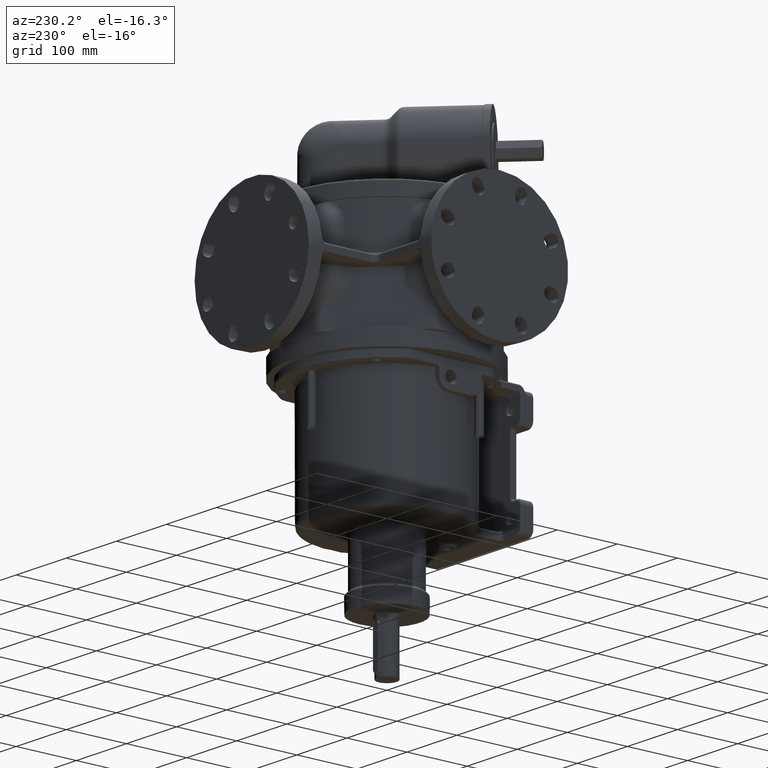
[diagram: clean part render]
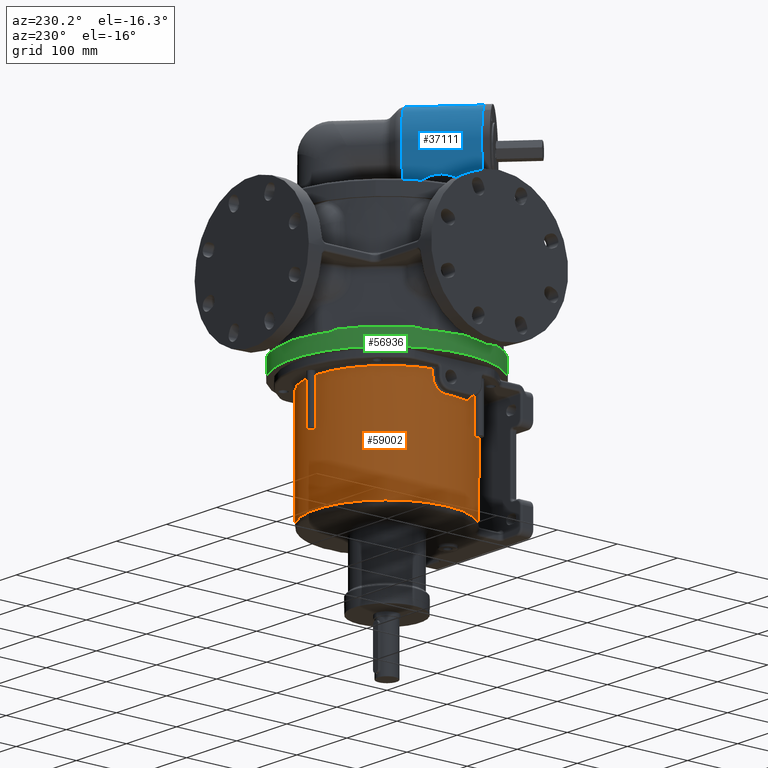
[diagram: same view with three faces highlighted in distinct colors, each labeled with its STEP entity id]
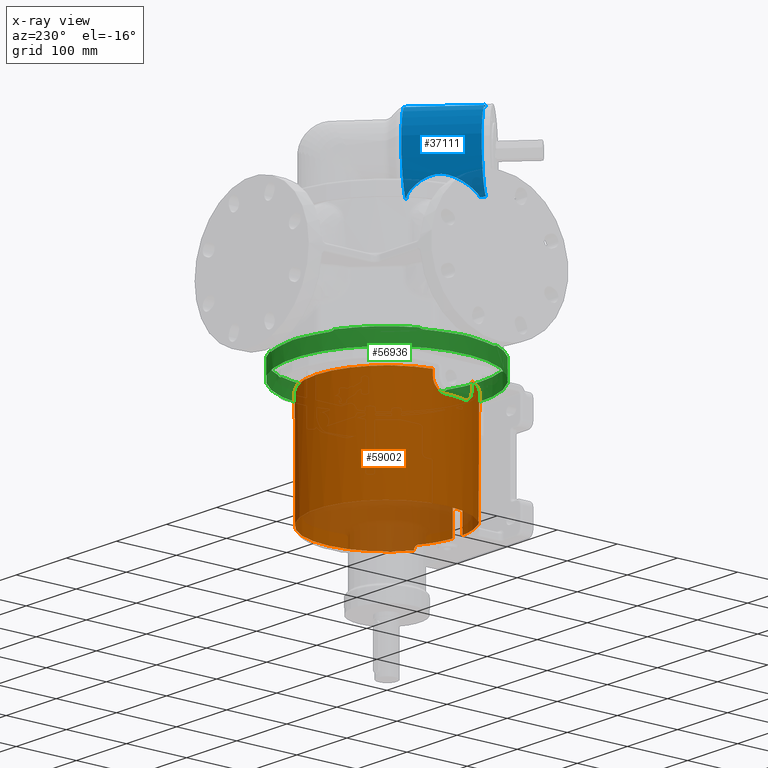
[diagram: x-ray of the same camera — body ghosted, the three highlighted faces saturated]
A machine part, auxiliary view with three faces highlighted in distinct colors.
The next image is the same camera in x-ray (body ghosted, the three faces saturated) — at least one of them is partly hidden behind the body in this view.
Their STEP definitions:

[orange] entity #59002 — the highlighted cylindrical surface (partial cylindrical patch) has radius 118 mm, axis along (0, 0, 1).
#13279=DIRECTION('',(1.413605868926E-12,-3.003725486564E-12,1.E0));
#13280=VECTOR('',#13279,9.500001380207E0);
#13281=CARTESIAN_POINT('',(-1.046019903972E2,-5.461157024791E1,
-5.449999999495E1));
#13282=LINE('',#13281,#13280);
#13283=CARTESIAN_POINT('',(0.E0,0.E0,-4.5E1));
#13284=DIRECTION('',(0.E0,0.E0,1.E0));
#13285=DIRECTION('',(-8.864575457389E-1,-4.628099173554E-1,0.E0));
#13286=AXIS2_PLACEMENT_3D('',#13283,#13284,#13285);
#13288=DIRECTION('',(0.E0,0.E0,-1.E0));
#13289=VECTOR('',#13288,1.72E2);
#13290=CARTESIAN_POINT('',(-9.752066115702E0,-1.175963316030E2,-4.5E1));
#13291=LINE('',#13290,#13289);
#13292=CARTESIAN_POINT('',(-5.559978152407E1,-1.040800859650E2,
-2.169982453366E2));
#13293=CARTESIAN_POINT('',(-5.485331436183E1,-1.044787901366E2,
-2.169982453521E2));
#13294=CARTESIAN_POINT('',(-5.335303870077E1,-1.052596582598E2,
-2.170008143349E2));
#13295=CARTESIAN_POINT('',(-5.108512608339E1,-1.063787675362E2,
-2.169997817996E2));
#13296=CARTESIAN_POINT('',(-4.879001291201E1,-1.074508037816E2,
-2.170000584666E2));
#13297=CARTESIAN_POINT('',(-4.647231402479E1,-1.084733283525E2,
-2.169999843339E2));
#13298=CARTESIAN_POINT('',(-4.413289436488E1,-1.094460007063E2,
-2.170000041977E2));
#13299=CARTESIAN_POINT('',(-4.177350606229E1,-1.103680793484E2,
-2.169999988752E2));
#13300=CARTESIAN_POINT('',(-3.939482128595E1,-1.112393243762E2,
-2.170000003014E2));
#13301=CARTESIAN_POINT('',(-3.699775564010E1,-1.120593839897E2,
-2.169999999192E2));
#13302=CARTESIAN_POINT('',(-3.458362258028E1,-1.128277997516E2,
-2.170000000216E2));
#13303=CARTESIAN_POINT('',(-3.215361590917E1,-1.135441953356E2,
-2.169999999942E2));
#13304=CARTESIAN_POINT('',(-2.970876270467E1,-1.142082693713E2,
-2.170000000016E2));
#13305=CARTESIAN_POINT('',(-2.725020591471E1,-1.148197092794E2,
-2.169999999996E2));
#13306=CARTESIAN_POINT('',(-2.477909998435E1,-1.153782282728E2,
-2.170000000001E2));
#13307=CARTESIAN_POINT('',(-2.229656943191E1,-1.158835724087E2,-2.17E2));
#13308=CARTESIAN_POINT('',(-1.980376324610E1,-1.163355075679E2,-2.17E2));
#13309=CARTESIAN_POINT('',(-1.730182998586E1,-1.167338256021E2,-2.17E2));
#13310=CARTESIAN_POINT('',(-1.479192240994E1,-1.170783429671E2,-2.17E2));
#13311=CARTESIAN_POINT('',(-1.227519758018E1,-1.173689008417E2,-2.17E2));
#13312=CARTESIAN_POINT('',(-1.059360937284E1,-1.175265438352E2,-2.17E2));
#13313=CARTESIAN_POINT('',(-9.752066115702E0,-1.175963316030E2,-2.17E2));
#13315=CARTESIAN_POINT('',(-5.559978152407E1,-1.040800859650E2,
-2.169982453366E2));
#13316=CARTESIAN_POINT('',(-5.564511918108E1,-1.040558701483E2,
-2.169982485687E2));
#13317=CARTESIAN_POINT('',(-5.573875513745E1,-1.040057702183E2,
-2.169980730493E2));
#13318=CARTESIAN_POINT('',(-5.589222609528E1,-1.039233826472E2,
-2.169863971868E2));
#13319=CARTESIAN_POINT('',(-5.604643739814E1,-1.038402967176E2,
-2.169695204740E2));
#13320=CARTESIAN_POINT('',(-5.620393794163E1,-1.037551359313E2,
-2.169469456832E2));
#13321=CARTESIAN_POINT('',(-5.636309640278E1,-1.036687626880E2,
-2.169203771175E2));
#13322=CARTESIAN_POINT('',(-5.652285858671E1,-1.035817430798E2,
-2.168911061003E2));
#13323=CARTESIAN_POINT('',(-5.668205721421E1,-1.034947111820E2,
-2.168605286490E2));
#13324=CARTESIAN_POINT('',(-5.683913030691E1,-1.034085288078E2,
-2.168308570483E2));
#13325=CARTESIAN_POINT('',(-5.699620427514E1,-1.033220394716E2,
-2.168025538936E2));
#13326=CARTESIAN_POINT('',(-5.716233311367E1,-1.032302315271E2,
-2.167748712915E2));
#13327=CARTESIAN_POINT('',(-5.734515305062E1,-1.031288022008E2,
-2.167477271262E2));
#13328=CARTESIAN_POINT('',(-5.755357612225E1,-1.030126577453E2,
-2.167216727591E2));
#13329=CARTESIAN_POINT('',(-5.779268781082E1,-1.028787321245E2,
-2.166988135699E2));
#13330=CARTESIAN_POINT('',(-5.806415533344E1,-1.027258044053E2,
-2.166826227136E2));
#13331=CARTESIAN_POINT('',(-5.837106358481E1,-1.025517617020E2,
-2.166759192523E2));
#13332=CARTESIAN_POINT('',(-5.869377151232E1,-1.023674124942E2,
-2.166820748470E2));
#13333=CARTESIAN_POINT('',(-5.900911984453E1,-1.021859361918E2,
-2.167016551186E2));
#13334=CARTESIAN_POINT('',(-5.930599591124E1,-1.020139000888E2,
-2.167333601469E2));
#13335=CARTESIAN_POINT('',(-5.958483305615E1,-1.018512636333E2,
-2.167764182350E2));
#13336=CARTESIAN_POINT('',(-5.984325117476E1,-1.016996227937E2,
-2.168300462040E2));
#13337=CARTESIAN_POINT('',(-6.008695168286E1,-1.015558164362E2,
-2.168938190567E2));
#13338=CARTESIAN_POINT('',(-6.032293825637E1,-1.014158174132E2,
-2.169681588211E2));
#13339=CARTESIAN_POINT('',(-6.055856812635E1,-1.012752939449E2,
-2.170553600046E2));
#13340=CARTESIAN_POINT('',(-6.079606440041E1,-1.011329038932E2,
-2.171569300204E2));
#13341=CARTESIAN_POINT('',(-6.103414266600E1,-1.009894017179E2,
-2.172729162681E2));
#13342=CARTESIAN_POINT('',(-6.127248382879E1,-1.008449733393E2,
-2.174035214937E2));
#13343=CARTESIAN_POINT('',(-6.150995198908E1,-1.007003042339E2,
-2.175480198466E2));
#13344=CARTESIAN_POINT('',(-6.174308951478E1,-1.005575216745E2,
-2.177047368645E2));
#13345=CARTESIAN_POINT('',(-6.196860620616E1,-1.004186942966E2,
-2.178718503346E2));
#13346=CARTESIAN_POINT('',(-6.218323055292E1,-1.002859216913E2,
-2.180464963961E2));
#13347=CARTESIAN_POINT('',(-6.238837639452E1,-1.001584204126E2,
-2.182292154975E2));
#13348=CARTESIAN_POINT('',(-6.258573868193E1,-1.000352076466E2,
-2.184213610109E2));
#13349=CARTESIAN_POINT('',(-6.277680505756E1,-9.991541032056E1,
-2.186246791181E2));
#13350=CARTESIAN_POINT('',(-6.296216452227E1,-9.979870400766E1,
-2.188406010534E2));
#13351=CARTESIAN_POINT('',(-6.314115121862E1,-9.968555275135E1,
-2.190678416546E2));
#13352=CARTESIAN_POINT('',(-6.331319846852E1,-9.957636340969E1,
-2.193056061357E2));
#13353=CARTESIAN_POINT('',(-6.347698278578E1,-9.947202857750E1,
-2.195521776964E2));
#13354=CARTESIAN_POINT('',(-6.362976330673E1,-9.937435929015E1,
-2.198033434164E2));
#13355=CARTESIAN_POINT('',(-6.376907863872E1,-9.928500781759E1,
-2.200544204259E2));
#13356=CARTESIAN_POINT('',(-6.389358479779E1,-9.920492097211E1,
-2.203016877430E2));
#13357=CARTESIAN_POINT('',(-6.400553150392E1,-9.913272567016E1,
-2.205491429305E2));
#13358=CARTESIAN_POINT('',(-6.410749688375E1,-9.906681247957E1,
-2.208009520479E2));
#13359=CARTESIAN_POINT('',(-6.420015994650E1,-9.900678282825E1,
-2.210588042965E2));
#13360=CARTESIAN_POINT('',(-6.428086474796E1,-9.895439867364E1,
-2.213144444847E2));
#13361=CARTESIAN_POINT('',(-6.434809522162E1,-9.891068872891E1,
-2.215591974255E2));
#13362=CARTESIAN_POINT('',(-6.440167075724E1,-9.887581035531E1,
-2.217851720289E2));
#13363=CARTESIAN_POINT('',(-6.444434942500E1,-9.884799693731E1,
-2.219966813169E2));
#13364=CARTESIAN_POINT('',(-6.447760119926E1,-9.882630893929E1,
-2.221990718979E2));
#13365=CARTESIAN_POINT('',(-6.450269281371E1,-9.880993283352E1,
-2.223989915302E2));
#13366=CARTESIAN_POINT('',(-6.451981184352E1,-9.879875484154E1,
-2.225982332031E2));
#13367=CARTESIAN_POINT('',(-6.452937673123E1,-9.879250757321E1,
-2.227976464111E2));
#13368=CARTESIAN_POINT('',(-6.453126114554E1,-9.879127661377E1,
-2.229323468841E2));
#13369=CARTESIAN_POINT('',(-6.453125E1,-9.879128389406E1,-2.23E2));
#13371=DIRECTION('',(-1.111796559446E-6,7.262322268385E-7,-9.999999999991E-1));
#13372=VECTOR('',#13371,1.000000004227E0);
#13373=CARTESIAN_POINT('',(-6.453125E1,-9.879128389406E1,-2.23E2));
#13374=LINE('',#13373,#13372);
#13375=DIRECTION('',(-5.257588475668E-7,-3.434281111626E-7,9.999999999998E-1));
#13376=VECTOR('',#13375,1.000000004228E0);
#13377=CARTESIAN_POINT('',(6.453125052576E1,-9.879128355063E1,
-2.240000000042E2));
#13378=LINE('',#13377,#13376);
#13379=CARTESIAN_POINT('',(6.453125E1,-9.879128389406E1,-2.23E2));
#13380=CARTESIAN_POINT('',(6.453126113337E1,-9.879127662172E1,
-2.229324105363E2));
#13381=CARTESIAN_POINT('',(6.452937604966E1,-9.879250801843E1,
-2.227978186636E2));
#13382=CARTESIAN_POINT('',(6.451981226089E1,-9.879875456882E1,
-2.225984818202E2));
#13383=CARTESIAN_POINT('',(6.450270289597E1,-9.880992625012E1,
-2.223993212890E2));
#13384=CARTESIAN_POINT('',(6.447764472292E1,-9.882628053609E1,
-2.221995592498E2));
#13385=CARTESIAN_POINT('',(6.444445982991E1,-9.884792494414E1,
-2.219973962997E2));
#13386=CARTESIAN_POINT('',(6.440186668778E1,-9.887568271725E1,
-2.217860834722E2));
#13387=CARTESIAN_POINT('',(6.434836919069E1,-9.891051047666E1,
-2.215601883255E2));
#13388=CARTESIAN_POINT('',(6.428117326274E1,-9.895419825244E1,
-2.213153457302E2));
#13389=CARTESIAN_POINT('',(6.420049151688E1,-9.900656781556E1,
-2.210596307859E2));
#13390=CARTESIAN_POINT('',(6.410785911257E1,-9.906657804857E1,
-2.208017773150E2));
#13391=CARTESIAN_POINT('',(6.400596852314E1,-9.913244347199E1,
-2.205500965059E2));
#13392=CARTESIAN_POINT('',(6.389405535679E1,-9.920461790080E1,
-2.203026713035E2));
#13393=CARTESIAN_POINT('',(6.376951390447E1,-9.928472830619E1,
-2.200552937516E2));
#13394=CARTESIAN_POINT('',(6.363008253482E1,-9.937415496554E1,
-2.198039690341E2));
#13395=CARTESIAN_POINT('',(6.347720945069E1,-9.947188399580E1,
-2.195526153661E2));
#13396=CARTESIAN_POINT('',(6.331334985525E1,-9.957626720153E1,
-2.193058904343E2));
#13397=CARTESIAN_POINT('',(6.314124960424E1,-9.968549048472E1,
-2.190680116848E2));
#13398=CARTESIAN_POINT('',(6.296218888234E1,-9.979868870127E1,
-2.188406415482E2));
#13399=CARTESIAN_POINT('',(6.277678847066E1,-9.991542073488E1,
-2.186246554697E2));
#13400=CARTESIAN_POINT('',(6.258576229434E1,-1.000351928405E2,
-2.184213722123E2));
#13401=CARTESIAN_POINT('',(6.238841196581E1,-1.001583982556E2,
-2.182292278460E2));
#13402=CARTESIAN_POINT('',(6.218321986339E1,-1.002859284495E2,
-2.180464608518E2));
#13403=CARTESIAN_POINT('',(6.196837365755E1,-1.004188380659E2,
-2.178716419369E2));
#13404=CARTESIAN_POINT('',(6.174261467424E1,-1.005578134493E2,
-2.177043799904E2));
#13405=CARTESIAN_POINT('',(6.150930580614E1,-1.007006990815E2,
-2.175475943286E2));
#13406=CARTESIAN_POINT('',(6.127173109491E1,-1.008454307631E2,
-2.174030801512E2));
#13407=CARTESIAN_POINT('',(6.103333156284E1,-1.009898919974E2,
-2.172725066988E2));
#13408=CARTESIAN_POINT('',(6.079513391535E1,-1.011334634031E2,
-2.171565324589E2));
#13409=CARTESIAN_POINT('',(6.055750526648E1,-1.012759295806E2,
-2.170549824649E2));
#13410=CARTESIAN_POINT('',(6.032178611613E1,-1.014165028641E2,
-2.169678211153E2));
#13411=CARTESIAN_POINT('',(6.008554522297E1,-1.015566489207E2,
-2.168934731397E2));
#13412=CARTESIAN_POINT('',(5.984146014681E1,-1.017006771594E2,
-2.168296789074E2));
#13413=CARTESIAN_POINT('',(5.958254419989E1,-1.018526032403E2,
-2.167760530148E2));
#13414=CARTESIAN_POINT('',(5.930318795028E1,-1.020155330639E2,
-2.167330085798E2));
#13415=CARTESIAN_POINT('',(5.900593616739E1,-1.021877748626E2,
-2.167013627493E2));
#13416=CARTESIAN_POINT('',(5.869058496462E1,-1.023692392492E2,
-2.166818866786E2));
#13417=CARTESIAN_POINT('',(5.836804477549E1,-1.025534798313E2,
-2.166758427447E2));
#13418=CARTESIAN_POINT('',(5.806102905211E1,-1.027275716535E2,
-2.166826738363E2));
#13419=CARTESIAN_POINT('',(5.778940049425E1,-1.028805788354E2,
-2.166990447239E2));
#13420=CARTESIAN_POINT('',(5.755020885587E1,-1.030145390695E2,
-2.167220768524E2));
#13421=CARTESIAN_POINT('',(5.734166574795E1,-1.031307413147E2,
-2.167482779286E2));
#13422=CARTESIAN_POINT('',(5.715884334497E1,-1.032321638156E2,
-2.167755197461E2));
#13423=CARTESIAN_POINT('',(5.699281369851E1,-1.033239096657E2,
-2.168032477021E2));
#13424=CARTESIAN_POINT('',(5.683594772763E1,-1.034102778766E2,
-2.168315416724E2));
#13425=CARTESIAN_POINT('',(5.667919467215E1,-1.034962787012E2,
-2.168611475306E2));
#13426=CARTESIAN_POINT('',(5.652022660139E1,-1.035831791112E2,
-2.168916330208E2));
#13427=CARTESIAN_POINT('',(5.636069558749E1,-1.036700678211E2,
-2.169207829909E2));
#13428=CARTESIAN_POINT('',(5.620172017219E1,-1.037563370524E2,
-2.169472549604E2));
#13429=CARTESIAN_POINT('',(5.604442249202E1,-1.038413843970E2,
-2.169697179569E2));
#13430=CARTESIAN_POINT('',(5.589002722863E1,-1.039245646333E2,
-2.169866406345E2));
#13431=CARTESIAN_POINT('',(5.573721041396E1,-1.040065992945E2,
-2.169978853319E2));
#13432=CARTESIAN_POINT('',(5.564125054138E1,-1.040579383015E2,
-2.169989682864E2));
#13433=CARTESIAN_POINT('',(5.559434359800E1,-1.040829907329E2,
-2.169989653998E2));
#13435=CARTESIAN_POINT('',(9.752066115703E0,-1.175963316030E2,-2.17E2));
#13436=CARTESIAN_POINT('',(1.059349335794E1,-1.175265534561E2,-2.17E2));
#13437=CARTESIAN_POINT('',(1.227484994891E1,-1.173689346858E2,-2.17E2));
#13438=CARTESIAN_POINT('',(1.479122908999E1,-1.170784280419E2,-2.17E2));
#13439=CARTESIAN_POINT('',(1.730079314695E1,-1.167339767451E2,-2.17E2));
#13440=CARTESIAN_POINT('',(1.980238544464E1,-1.163357395712E2,-2.17E2));
#13441=CARTESIAN_POINT('',(2.229485439230E1,-1.158838998248E2,-2.17E2));
#13442=CARTESIAN_POINT('',(2.477704942994E1,-1.153786660866E2,
-2.170000000001E2));
#13443=CARTESIAN_POINT('',(2.724782793763E1,-1.148202710682E2,
-2.169999999998E2));
#13444=CARTESIAN_POINT('',(2.970605784515E1,-1.142089703155E2,
-2.170000000009E2));
#13445=CARTESIAN_POINT('',(3.215058711947E1,-1.135450504540E2,
-2.169999999966E2));
#13446=CARTESIAN_POINT('',(3.458029420098E1,-1.128288173625E2,
-2.170000000128E2));
#13447=CARTESIAN_POINT('',(3.699411021595E1,-1.120605846836E2,
-2.169999999524E2));
#13448=CARTESIAN_POINT('',(3.939085954539E1,-1.112407248383E2,
-2.170000001777E2));
#13449=CARTESIAN_POINT('',(4.176932622131E1,-1.103696597196E2,
-2.169999993368E2));
#13450=CARTESIAN_POINT('',(4.412852375764E1,-1.094477601040E2,
-2.170000024751E2));
#13451=CARTESIAN_POINT('',(4.646760799679E1,-1.084753425181E2,
-2.169999907628E2));
#13452=CARTESIAN_POINT('',(4.878512005794E1,-1.074530203109E2,
-2.170000344737E2));
#13453=CARTESIAN_POINT('',(5.108009959697E1,-1.063811924338E2,
-2.169998713423E2));
#13454=CARTESIAN_POINT('',(5.334941278426E1,-1.052614872823E2,
-2.170004801572E2));
#13455=CARTESIAN_POINT('',(5.484864742157E1,-1.044812580672E2,
-2.169989654051E2));
#13456=CARTESIAN_POINT('',(5.559434359800E1,-1.040829907329E2,
-2.169989653998E2));
#13458=DIRECTION('',(0.E0,0.E0,1.E0));
#13459=VECTOR('',#13458,1.72E2);
#13460=CARTESIAN_POINT('',(9.752066115702E0,-1.175963316030E2,-2.17E2));
#13461=LINE('',#13460,#13459);
#13462=CARTESIAN_POINT('',(0.E0,0.E0,-4.5E1));
#13463=DIRECTION('',(0.E0,0.E0,1.E0));
#13464=DIRECTION('',(8.264462809917E-2,-9.965790813811E-1,0.E0));
#13465=AXIS2_PLACEMENT_3D('',#13462,#13463,#13464);
#13467=DIRECTION('',(2.367977160686E-12,4.533262656638E-12,-1.E0));
#13468=VECTOR('',#13467,9.499999994784E0);
#13469=CARTESIAN_POINT('',(1.046019903972E2,-5.461157024793E1,-4.5E1));
#13470=LINE('',#13469,#13468);
#13471=CARTESIAN_POINT('',(1.046019903972E2,-5.461157024789E1,
-5.449999999478E1));
#13472=CARTESIAN_POINT('',(1.046019942354E2,-5.461156234190E1,
-5.471554908202E1));
#13473=CARTESIAN_POINT('',(1.046054190992E2,-5.460500397592E1,
-5.514662497258E1));
#13474=CARTESIAN_POINT('',(1.046207229720E2,-5.457568081898E1,
-5.579340348575E1));
#13475=CARTESIAN_POINT('',(1.046461326395E2,-5.452695063778E1,
-5.643965204212E1));
#13476=CARTESIAN_POINT('',(1.046816068514E2,-5.445882597003E1,
-5.708491893135E1));
#13477=CARTESIAN_POINT('',(1.047271247454E2,-5.437125457766E1,
-5.772867266445E1));
#13478=CARTESIAN_POINT('',(1.047826856462E2,-5.426411841908E1,
-5.837037323645E1));
#13479=CARTESIAN_POINT('',(1.048483059540E2,-5.413723864880E1,
-5.900945894019E1));
#13480=CARTESIAN_POINT('',(1.049239135232E2,-5.399057955119E1,
-5.964597513744E1));
#13481=CARTESIAN_POINT('',(1.050094715164E2,-5.382400945004E1,
-6.027992402793E1));
#13482=CARTESIAN_POINT('',(1.051049680339E2,-5.363731848730E1,
-6.091120368654E1));
#13483=CARTESIAN_POINT('',(1.052102875338E2,-5.343046980752E1,
-6.153892796775E1));
#13484=CARTESIAN_POINT('',(1.053252990878E2,-5.320342916606E1,
-6.216219598215E1));
#13485=CARTESIAN_POINT('',(1.054498567509E2,-5.295616431341E1,
-6.278016187776E1));
#13486=CARTESIAN_POINT('',(1.055838158565E2,-5.268861277302E1,
-6.339248104912E1));
#13487=CARTESIAN_POINT('',(1.057270364809E2,-5.240067412230E1,
-6.399873164101E1));
#13488=CARTESIAN_POINT('',(1.058793507134E2,-5.209227473272E1,
-6.459834109026E1));
#13489=CARTESIAN_POINT('',(1.060404493224E2,-5.176360155549E1,
-6.519021868046E1));
#13490=CARTESIAN_POINT('',(1.062099977051E2,-5.141487427243E1,
-6.577328084893E1));
#13491=CARTESIAN_POINT('',(1.063876615624E2,-5.104629456721E1,
-6.634658568515E1));
#13492=CARTESIAN_POINT('',(1.065731709191E2,-5.065791190787E1,
-6.690961605877E1));
#13493=CARTESIAN_POINT('',(1.067662441875E2,-5.024977827274E1,
-6.746179629586E1));
#13494=CARTESIAN_POINT('',(1.069665249231E2,-4.982208448178E1,
-6.800235571262E1));
#13495=CARTESIAN_POINT('',(1.071734934851E2,-4.937536145621E1,
-6.853015331155E1));
#13496=CARTESIAN_POINT('',(1.073866151624E2,-4.891017665987E1,
-6.904411801896E1));
#13497=CARTESIAN_POINT('',(1.076053586664E2,-4.842709724281E1,
-6.954328604658E1));
#13498=CARTESIAN_POINT('',(1.078292208932E2,-4.792663680027E1,
-7.002684557742E1));
#13499=CARTESIAN_POINT('',(1.080576730701E2,-4.740937700900E1,
-7.049398854596E1));
#13500=CARTESIAN_POINT('',(1.082901660367E2,-4.687596272265E1,
-7.094392432294E1));
#13501=CARTESIAN_POINT('',(1.085261304592E2,-4.632710833331E1,
-7.137587822632E1));
#13502=CARTESIAN_POINT('',(1.087649937418E2,-4.576356497058E1,
-7.178911883110E1));
#13503=CARTESIAN_POINT('',(1.090061665142E2,-4.518615827538E1,
-7.218294311544E1));
#13504=CARTESIAN_POINT('',(1.092490541197E2,-4.459576850867E1,
-7.255668959833E1));
#13505=CARTESIAN_POINT('',(1.094930605655E2,-4.399332761543E1,
-7.290974783596E1));
#13506=CARTESIAN_POINT('',(1.097376196133E2,-4.337974693139E1,
-7.324159576773E1));
#13507=CARTESIAN_POINT('',(1.099821848848E2,-4.275594262075E1,
-7.355177395591E1));
#13508=CARTESIAN_POINT('',(1.102262236308E2,-4.212285391521E1,
-7.383987003995E1));
#13509=CARTESIAN_POINT('',(1.104691964656E2,-4.148150109602E1,
-7.410550938753E1));
#13510=CARTESIAN_POINT('',(1.107105798037E2,-4.083293260388E1,
-7.434837337920E1));
#13511=CARTESIAN_POINT('',(1.109498452910E2,-4.017828736314E1,
-7.456818757005E1));
#13512=CARTESIAN_POINT('',(1.111866232561E2,-3.951834450426E1,
-7.476485907098E1));
#13513=CARTESIAN_POINT('',(1.114206635091E2,-3.885359790375E1,
-7.493838641337E1));
#13514=CARTESIAN_POINT('',(1.116517303245E2,-3.818453560198E1,
-7.508873453897E1));
#13515=CARTESIAN_POINT('',(1.118795230557E2,-3.751187562365E1,
-7.521586549224E1));
#13516=CARTESIAN_POINT('',(1.121036340025E2,-3.683672146692E1,
-7.531976111223E1));
#13517=CARTESIAN_POINT('',(1.123237121623E2,-3.616009251980E1,
-7.540043730773E1));
#13518=CARTESIAN_POINT('',(1.125394172529E2,-3.548305933987E1,
-7.545794229623E1));
#13519=CARTESIAN_POINT('',(1.127504799312E2,-3.480655163158E1,
-7.549235851491E1));
#13520=CARTESIAN_POINT('',(1.128878322913E2,-3.435683581808E1,
-7.549998802145E1));
#13521=CARTESIAN_POINT('',(1.129557027310E2,-3.413223140296E1,-7.55E1));
#13523=CARTESIAN_POINT('',(0.E0,0.E0,-7.55E1));
#13524=DIRECTION('',(0.E0,0.E0,1.E0));
#13525=DIRECTION('',(9.572517180542E-1,-2.892561983471E-1,0.E0));
#13526=AXIS2_PLACEMENT_3D('',#13523,#13524,#13525);
#13528=CARTESIAN_POINT('',(1.18E2,3.152350648768E-11,-7.55E1));
#13529=CARTESIAN_POINT('',(1.179999995894E2,2.182178220223E-1,
-7.549998976976E1));
#13530=CARTESIAN_POINT('',(1.179987900162E2,6.546596070857E-1,
-7.549278124938E1));
#13531=CARTESIAN_POINT('',(1.179933373925E2,1.309683028582E0,
-7.546043813366E1));
#13532=CARTESIAN_POINT('',(1.179842588105E2,1.963959564712E0,
-7.540659956514E1));
#13533=CARTESIAN_POINT('',(1.179715822008E2,2.616767990456E0,
-7.533129976295E1));
#13534=CARTESIAN_POINT('',(1.179553535856E2,3.267279387067E0,
-7.523457232414E1));
#13535=CARTESIAN_POINT('',(1.179356359003E2,3.914696582622E0,
-7.511645041080E1));
#13536=CARTESIAN_POINT('',(1.179125109801E2,4.558189724076E0,
-7.497696483804E1));
#13537=CARTESIAN_POINT('',(1.178860561358E2,5.197431116311E0,
-7.481620839015E1));
#13538=CARTESIAN_POINT('',(1.178563536630E2,5.832109316247E0,
-7.463423407323E1));
#13539=CARTESIAN_POINT('',(1.178234933021E2,6.461880355845E0,
-7.443105093587E1));
#13540=CARTESIAN_POINT('',(1.177875937768E2,7.086028674725E0,
-7.420676246766E1));
#13541=CARTESIAN_POINT('',(1.177487886925E2,7.703838386E0,-7.396147611854E1));
#13542=CARTESIAN_POINT('',(1.177072259002E2,8.314589110108E0,
-7.369531845494E1));
#13543=CARTESIAN_POINT('',(1.176630653034E2,8.917583733160E0,
-7.340853934175E1));
#13544=CARTESIAN_POINT('',(1.176164802856E2,9.512117505061E0,
-7.310138815249E1));
#13545=CARTESIAN_POINT('',(1.175676568054E2,1.009748718174E1,
-7.277412070279E1));
#13546=CARTESIAN_POINT('',(1.175167911420E2,1.067300925643E1,
-7.242698721735E1));
#13547=CARTESIAN_POINT('',(1.174640925585E2,1.123798216447E1,
-7.206023497116E1));
#13548=CARTESIAN_POINT('',(1.174097778115E2,1.179174125524E1,
-7.167414549588E1));
#13549=CARTESIAN_POINT('',(1.173540648293E2,1.233370327400E1,
-7.126907990295E1));
#13550=CARTESIAN_POINT('',(1.172971799301E2,1.286327737548E1,
-7.084537958669E1));
#13551=CARTESIAN_POINT('',(1.172393635314E2,1.337981241054E1,
-7.040343792205E1));
#13552=CARTESIAN_POINT('',(1.171808731687E2,1.388257857671E1,
-6.994373498065E1));
#13553=CARTESIAN_POINT('',(1.171219731632E2,1.437085977228E1,
-6.946674460487E1));
#13554=CARTESIAN_POINT('',(1.170629280272E2,1.484399602388E1,
-6.897301030604E1));
#13555=CARTESIAN_POINT('',(1.170039993367E2,1.530139117304E1,
-6.846313344312E1));
#13556=CARTESIAN_POINT('',(1.169454535946E2,1.574243966366E1,
-6.793773413688E1));
#13557=CARTESIAN_POINT('',(1.168875508698E2,1.616660444667E1,
-6.739738024847E1));
#13558=CARTESIAN_POINT('',(1.168305470686E2,1.657338516897E1,
-6.684260731223E1));
#13559=CARTESIAN_POINT('',(1.167746995640E2,1.696227030160E1,
-6.627393608585E1));
#13560=CARTESIAN_POINT('',(1.167202611413E2,1.733277407483E1,
-6.569206283446E1));
#13561=CARTESIAN_POINT('',(1.166674793105E2,1.768443252596E1,
-6.509776160843E1));
#13562=CARTESIAN_POINT('',(1.166165972373E2,1.801679046791E1,
-6.449181160059E1));
#13563=CARTESIAN_POINT('',(1.165678466859E2,1.832944048903E1,
-6.387494160959E1));
#13564=CARTESIAN_POINT('',(1.165214495674E2,1.862200383267E1,
-6.324785102467E1));
#13565=CARTESIAN_POINT('',(1.164776238364E2,1.889408788736E1,
-6.261123180797E1));
#13566=CARTESIAN_POINT('',(1.164365669682E2,1.914538331085E1,
-6.196586443954E1));
#13567=CARTESIAN_POINT('',(1.163984570887E2,1.937564686410E1,
-6.131258652406E1));
#13568=CARTESIAN_POINT('',(1.163634639312E2,1.958462946117E1,
-6.065225524885E1));
#13569=CARTESIAN_POINT('',(1.163317376244E2,1.977213965935E1,
-5.998559882328E1));
#13570=CARTESIAN_POINT('',(1.163034092677E2,1.993803431086E1,
-5.931313886473E1));
#13571=CARTESIAN_POINT('',(1.162786066004E2,2.008212396477E1,
-5.863540857278E1));
#13572=CARTESIAN_POINT('',(1.162574421415E2,2.020424110484E1,
-5.795299914102E1));
#13573=CARTESIAN_POINT('',(1.162399947570E2,2.030434233051E1,
-5.726676605004E1));
#13574=CARTESIAN_POINT('',(1.162263353442E2,2.038235707749E1,
-5.657751777214E1));
#13575=CARTESIAN_POINT('',(1.162165230459E2,2.043821045654E1,
-5.588610080661E1));
#13576=CARTESIAN_POINT('',(1.162106054433E2,2.047181643142E1,
-5.519324931386E1));
#13577=CARTESIAN_POINT('',(1.162092825248E2,2.047932573133E1,
-5.473115744257E1));
#13578=CARTESIAN_POINT('',(1.162092796663E2,2.047933884297E1,
-5.449999999815E1));
#13580=DIRECTION('',(-4.218380032071E-13,2.396398869283E-12,1.E0));
#13581=VECTOR('',#13580,9.499999998151E0);
#13582=CARTESIAN_POINT('',(1.162092796663E2,2.047933884297E1,
-5.449999999815E1));
#13583=LINE('',#13582,#13581);
#13584=CARTESIAN_POINT('',(0.E0,0.E0,-4.5E1));
#13585=DIRECTION('',(0.E0,0.E0,1.E0));
#13586=DIRECTION('',(9.848244039515E-1,1.735537190083E-1,0.E0));
#13587=AXIS2_PLACEMENT_3D('',#13584,#13585,#13586);
#13589=DIRECTION('',(-4.128627265445E-13,-2.345538968195E-12,-1.E0));
#13590=VECTOR('',#13589,9.499999998118E0);
#13591=CARTESIAN_POINT('',(-1.162092796663E2,2.047933884299E1,-4.5E1));
#13592=LINE('',#13591,#13590);
#13593=CARTESIAN_POINT('',(-1.162092796663E2,2.047933884297E1,
-5.449999999812E1));
#13594=CARTESIAN_POINT('',(-1.162092816306E2,2.047932839587E1,
-5.473103400813E1));
#13595=CARTESIAN_POINT('',(-1.162106030554E2,2.047183109790E1,
-5.519294443680E1));
#13596=CARTESIAN_POINT('',(-1.162165172680E2,2.043824299925E1,
-5.588575226849E1));
#13597=CARTESIAN_POINT('',(-1.162263284087E2,2.038239670644E1,
-5.657725739079E1));
#13598=CARTESIAN_POINT('',(-1.162399892499E2,2.030437385722E1,
-5.726666249608E1));
#13599=CARTESIAN_POINT('',(-1.162574400572E2,2.020425315098E1,
-5.795305025719E1));
#13600=CARTESIAN_POINT('',(-1.162786086522E2,2.008211212190E1,
-5.863553918807E1));
#13601=CARTESIAN_POINT('',(-1.163034113214E2,1.993802228487E1,
-5.931322089951E1));
#13602=CARTESIAN_POINT('',(-1.163317346651E2,1.977215697444E1,
-5.998562047437E1));
#13603=CARTESIAN_POINT('',(-1.163634582636E2,1.958466315151E1,
-6.065227885144E1));
#13604=CARTESIAN_POINT('',(-1.163984555617E2,1.937565617004E1,
-6.131270638698E1));
#13605=CARTESIAN_POINT('',(-1.164365729462E2,1.914534723146E1,
-6.196607148606E1));
#13606=CARTESIAN_POINT('',(-1.164776452316E2,1.889395659080E1,
-6.261155552277E1));
#13607=CARTESIAN_POINT('',(-1.165214926885E2,1.862173467092E1,
-6.324834051444E1));
#13608=CARTESIAN_POINT('',(-1.165679049793E2,1.832907023220E1,
-6.387563637218E1));
#13609=CARTESIAN_POINT('',(-1.166166641443E2,1.801635760393E1,
-6.449265300048E1));
#13610=CARTESIAN_POINT('',(-1.166675447807E2,1.768400039228E1,
-6.509862042105E1));
#13611=CARTESIAN_POINT('',(-1.167203182683E2,1.733238901877E1,
-6.569282208312E1));
#13612=CARTESIAN_POINT('',(-1.167747508668E2,1.696191705517E1,
-6.627452730668E1));
#13613=CARTESIAN_POINT('',(-1.168305995980E2,1.657301512439E1,
-6.684306478018E1));
#13614=CARTESIAN_POINT('',(-1.168876088829E2,1.616618565982E1,
-6.739786485843E1));
#13615=CARTESIAN_POINT('',(-1.169455247539E2,1.574191228275E1,
-6.793835542345E1));
#13616=CARTESIAN_POINT('',(-1.170040864262E2,1.530072645829E1,
-6.846391804080E1));
#13617=CARTESIAN_POINT('',(-1.170630262293E2,1.484322266399E1,
-6.897388878073E1));
#13618=CARTESIAN_POINT('',(-1.171220798484E2,1.436999106390E1,
-6.946761929908E1));
#13619=CARTESIAN_POINT('',(-1.171809794837E2,1.388168098310E1,
-6.994454354350E1));
#13620=CARTESIAN_POINT('',(-1.172394586176E2,1.337897772200E1,
-7.040416657043E1));
#13621=CARTESIAN_POINT('',(-1.172972558047E2,1.286258357285E1,
-7.084598533498E1));
#13622=CARTESIAN_POINT('',(-1.173541274182E2,1.233310701862E1,
-7.126959908757E1));
#13623=CARTESIAN_POINT('',(-1.174098405838E2,1.179111804881E1,
-7.167464072310E1));
#13624=CARTESIAN_POINT('',(-1.174641704215E2,1.123717194133E1,
-7.206073483591E1));
#13625=CARTESIAN_POINT('',(-1.175168835973E2,1.067199444547E1,
-7.242754149280E1));
#13626=CARTESIAN_POINT('',(-1.175677554127E2,1.009634036316E1,
-7.277473852711E1));
#13627=CARTESIAN_POINT('',(-1.176165731830E2,9.510967584507E0,
-7.310201085419E1));
#13628=CARTESIAN_POINT('',(-1.176631446314E2,8.916533931249E0,
-7.340910844701E1));
#13629=CARTESIAN_POINT('',(-1.177072902192E2,8.313675738658E0,
-7.369579263055E1));
#13630=CARTESIAN_POINT('',(-1.177488427238E2,7.703010415223E0,
-7.396181446658E1));
#13631=CARTESIAN_POINT('',(-1.177876383668E2,7.085284955364E0,
-7.420700600949E1));
#13632=CARTESIAN_POINT('',(-1.178235272378E2,6.461255302336E0,
-7.443122820418E1));
#13633=CARTESIAN_POINT('',(-1.178563726081E2,5.831719003902E0,
-7.463433463738E1));
#13634=CARTESIAN_POINT('',(-1.178860675974E2,5.197168213744E0,
-7.481627852633E1));
#13635=CARTESIAN_POINT('',(-1.179125207116E2,4.557941059437E0,
-7.497702674787E1));
#13636=CARTESIAN_POINT('',(-1.179356478909E2,3.914340232577E0,
-7.511648224557E1));
#13637=CARTESIAN_POINT('',(-1.179553640812E2,3.266898726241E0,
-7.523457139850E1));
#13638=CARTESIAN_POINT('',(-1.179715892094E2,2.616444960411E0,
-7.533127817982E1));
#13639=CARTESIAN_POINT('',(-1.179842623280E2,1.963736328175E0,
-7.540656974127E1));
#13640=CARTESIAN_POINT('',(-1.179933384225E2,1.309570601387E0,
-7.546041257063E1));
#13641=CARTESIAN_POINT('',(-1.179987900730E2,6.546392645155E-1,
-7.549276849178E1));
#13642=CARTESIAN_POINT('',(-1.179999994570E2,2.182164493461E-1,
-7.549998648982E1));
#13643=CARTESIAN_POINT('',(-1.18E2,3.754987844707E-11,-7.55E1));
#13645=CARTESIAN_POINT('',(0.E0,0.E0,-7.55E1));
#13646=DIRECTION('',(0.E0,0.E0,1.E0));
#13647=DIRECTION('',(-1.E0,0.E0,0.E0));
#13648=AXIS2_PLACEMENT_3D('',#13645,#13646,#13647);
#13650=CARTESIAN_POINT('',(-1.129557027310E2,-3.413223140294E1,-7.55E1));
#13651=CARTESIAN_POINT('',(-1.128878442589E2,-3.435679680183E1,
-7.549998921477E1));
#13652=CARTESIAN_POINT('',(-1.127505131997E2,-3.480644297661E1,
-7.549236455755E1));
#13653=CARTESIAN_POINT('',(-1.125394742738E2,-3.548287811641E1,
-7.545796083382E1));
#13654=CARTESIAN_POINT('',(-1.123237895495E2,-3.615985171759E1,
-7.540047214689E1));
#13655=CARTESIAN_POINT('',(-1.121037322382E2,-3.683642207939E1,
-7.531981584247E1));
#13656=CARTESIAN_POINT('',(-1.118796472175E2,-3.751150477406E1,
-7.521594465252E1));
#13657=CARTESIAN_POINT('',(-1.116518900624E2,-3.818406769911E1,
-7.508884422418E1));
#13658=CARTESIAN_POINT('',(-1.114208742135E2,-3.885299286782E1,
-7.493853694655E1));
#13659=CARTESIAN_POINT('',(-1.111868703156E2,-3.951764894189E1,
-7.476505407027E1));
#13660=CARTESIAN_POINT('',(-1.109501100663E2,-4.017755630605E1,
-7.456841836746E1));
#13661=CARTESIAN_POINT('',(-1.107108308008E2,-4.083225227823E1,
-7.434861229087E1));
#13662=CARTESIAN_POINT('',(-1.104694529770E2,-4.148081783948E1,
-7.410577297243E1));
#13663=CARTESIAN_POINT('',(-1.102264942851E2,-4.212214545464E1,
-7.384016970674E1));
#13664=CARTESIAN_POINT('',(-1.099824764083E2,-4.275519248932E1,
-7.355212077438E1));
#13665=CARTESIAN_POINT('',(-1.097379292997E2,-4.337896331554E1,
-7.324199360285E1));
#13666=CARTESIAN_POINT('',(-1.094933907347E2,-4.399250563007E1,
-7.291020563853E1));
#13667=CARTESIAN_POINT('',(-1.092494101638E2,-4.459489591670E1,
-7.255722003716E1));
#13668=CARTESIAN_POINT('',(-1.090065627447E2,-4.518520192128E1,
-7.218357358276E1));
#13669=CARTESIAN_POINT('',(-1.087654362296E2,-4.576251282236E1,
-7.178986718510E1));
#13670=CARTESIAN_POINT('',(-1.085266191382E2,-4.632596312007E1,
-7.137675110117E1));
#13671=CARTESIAN_POINT('',(-1.082906943673E2,-4.687474185841E1,
-7.094492022523E1));
#13672=CARTESIAN_POINT('',(-1.080582374067E2,-4.740809043249E1,
-7.049511145608E1));
#13673=CARTESIAN_POINT('',(-1.078298193854E2,-4.792529000232E1,
-7.002810263546E1));
#13674=CARTESIAN_POINT('',(-1.076059847562E2,-4.842570588552E1,
-6.954467379311E1));
#13675=CARTESIAN_POINT('',(-1.073872616036E2,-4.890875722307E1,
-6.904562915303E1));
#13676=CARTESIAN_POINT('',(-1.071741556988E2,-4.937392395935E1,
-6.853178279139E1));
#13677=CARTESIAN_POINT('',(-1.069672029907E2,-4.982062860441E1,
-6.800411546229E1));
#13678=CARTESIAN_POINT('',(-1.067669264939E2,-5.024832867125E1,
-6.746366774709E1));
#13679=CARTESIAN_POINT('',(-1.065738161867E2,-5.065655486541E1,
-6.691149020010E1));
#13680=CARTESIAN_POINT('',(-1.063882186534E2,-5.104513416198E1,
-6.634830431818E1));
#13681=CARTESIAN_POINT('',(-1.062104601899E2,-5.141391936766E1,
-6.577479297462E1));
#13682=CARTESIAN_POINT('',(-1.060408599401E2,-5.176276052263E1,
-6.519168819972E1));
#13683=CARTESIAN_POINT('',(-1.058797687440E2,-5.209142484375E1,
-6.460002996443E1));
#13684=CARTESIAN_POINT('',(-1.057275175430E2,-5.239970323058E1,
-6.400087362960E1));
#13685=CARTESIAN_POINT('',(-1.055843258915E2,-5.268759069050E1,
-6.339492773158E1));
#13686=CARTESIAN_POINT('',(-1.054503531572E2,-5.295517593537E1,
-6.278264272017E1));
#13687=CARTESIAN_POINT('',(-1.053257654595E2,-5.320250603179E1,
-6.216447491894E1));
#13688=CARTESIAN_POINT('',(-1.052107150373E2,-5.342962814147E1,
-6.154121186105E1));
#13689=CARTESIAN_POINT('',(-1.051053504882E2,-5.363656921297E1,
-6.091363701758E1));
#13690=CARTESIAN_POINT('',(-1.050097786455E2,-5.382341052638E1,
-6.028231296192E1));
#13691=CARTESIAN_POINT('',(-1.049241024311E2,-5.399021269770E1,
-5.964765624786E1));
#13692=CARTESIAN_POINT('',(-1.048484032757E2,-5.413705032792E1,
-5.901010416289E1));
#13693=CARTESIAN_POINT('',(-1.047826982721E2,-5.426409421563E1,
-5.837015368960E1));
#13694=CARTESIAN_POINT('',(-1.047270269884E2,-5.437144302435E1,
-5.772824030351E1));
#13695=CARTESIAN_POINT('',(-1.046814342155E2,-5.445915784626E1,
-5.708470136741E1));
#13696=CARTESIAN_POINT('',(-1.046459845681E2,-5.452723472520E1,
-5.643984976024E1));
#13697=CARTESIAN_POINT('',(-1.046206398539E2,-5.457584023698E1,
-5.579396455453E1));
#13698=CARTESIAN_POINT('',(-1.046053970295E2,-5.460504578974E1,
-5.514726993680E1));
#13699=CARTESIAN_POINT('',(-1.046019922479E2,-5.461156712181E1,
-5.471582197525E1));
#13700=CARTESIAN_POINT('',(-1.046019903972E2,-5.461157024791E1,
-5.449999999495E1));
#15040=CARTESIAN_POINT('',(5.558675986610E1,-1.040870413144E2,
-2.169989668084E2));
#15839=CARTESIAN_POINT('',(2.375816790346E-14,-2.375812790346E-14,-2.24E2));
#15840=DIRECTION('',(0.E0,0.E0,1.E0));
#15841=DIRECTION('',(5.46875E-1,-8.372142702887E-1,0.E0));
#15842=AXIS2_PLACEMENT_3D('',#15839,#15840,#15841);
#15886=CARTESIAN_POINT('',(-5.558676002769E1,-1.040870416054E2,
-2.169982493613E2));
#24770=CARTESIAN_POINT('',(-1.046019903972E2,-5.461157024793E1,-4.5E1));
#24772=VERTEX_POINT('',#24770);
#24776=CARTESIAN_POINT('',(-1.046019903972E2,-5.461157024791E1,
-5.449999999495E1));
#24777=VERTEX_POINT('',#24776);
#24780=VERTEX_POINT('',#13650);
#24782=CARTESIAN_POINT('',(-1.18E2,-2.002295516606E-14,-7.55E1));
#24783=VERTEX_POINT('',#24782);
#24786=VERTEX_POINT('',#13593);
#24788=CARTESIAN_POINT('',(-1.162092796663E2,2.047933884299E1,-4.5E1));
#24789=VERTEX_POINT('',#24788);
#24794=CARTESIAN_POINT('',(1.162092796663E2,2.047933884298E1,-4.5E1));
#24795=VERTEX_POINT('',#24794);
#24800=CARTESIAN_POINT('',(1.162092796663E2,2.047933884297E1,
-5.449999999815E1));
#24801=VERTEX_POINT('',#24800);
#24804=VERTEX_POINT('',#13528);
#24806=CARTESIAN_POINT('',(1.129557027304E2,-3.413223140496E1,-7.55E1));
#24807=VERTEX_POINT('',#24806);
#24810=VERTEX_POINT('',#13471);
#24812=CARTESIAN_POINT('',(1.046019903972E2,-5.461157024793E1,-4.5E1));
#24813=VERTEX_POINT('',#24812);
#24826=CARTESIAN_POINT('',(6.453125E1,-9.879128389406E1,-2.24E2));
#24827=CARTESIAN_POINT('',(-6.453125E1,-9.879128389406E1,-2.24E2));
#24828=VERTEX_POINT('',#24826);
#24829=VERTEX_POINT('',#24827);
#24855=CARTESIAN_POINT('',(9.752066115703E0,-1.175963316030E2,-2.17E2));
#24856=VERTEX_POINT('',#24855);
#24857=CARTESIAN_POINT('',(9.752066115702E0,-1.175963316030E2,
-4.500000000002E1));
#24858=VERTEX_POINT('',#24857);
#24879=CARTESIAN_POINT('',(-9.752066115702E0,-1.175963316030E2,-4.5E1));
#24880=VERTEX_POINT('',#24879);
#24881=CARTESIAN_POINT('',(-9.752066115702E0,-1.175963316030E2,-2.17E2));
#24882=VERTEX_POINT('',#24881);
#24897=CARTESIAN_POINT('',(-6.453125E1,-9.879128389406E1,-2.230000049493E2));
#24898=VERTEX_POINT('',#24897);
#24900=VERTEX_POINT('',#15886);
#24912=VERTEX_POINT('',#15040);
#24913=CARTESIAN_POINT('',(6.453125E1,-9.879128389406E1,-2.230000048574E2));
#24914=VERTEX_POINT('',#24913);
#58954=CARTESIAN_POINT('',(4.026640675596E-14,-4.026636675596E-14,-3.588E2));
#58955=DIRECTION('',(0.E0,0.E0,1.E0));
#58956=DIRECTION('',(1.E0,0.E0,0.E0));
#58957=AXIS2_PLACEMENT_3D('',#58954,#58955,#58956);
#58958=CYLINDRICAL_SURFACE('',#58957,1.18E2);
#58960=ORIENTED_EDGE('',*,*,#58959,.T.);
#58961=ORIENTED_EDGE('',*,*,#58022,.T.);
#58963=ORIENTED_EDGE('',*,*,#58962,.T.);
#58965=ORIENTED_EDGE('',*,*,#58964,.F.);
#58967=ORIENTED_EDGE('',*,*,#58966,.T.);
#58969=ORIENTED_EDGE('',*,*,#58968,.T.);
#58971=ORIENTED_EDGE('',*,*,#58970,.F.);
#58973=ORIENTED_EDGE('',*,*,#58972,.T.);
#58975=ORIENTED_EDGE('',*,*,#58974,.T.);
#58977=ORIENTED_EDGE('',*,*,#58976,.F.);
#58979=ORIENTED_EDGE('',*,*,#58978,.T.);
#58980=ORIENTED_EDGE('',*,*,#58723,.T.);
#58981=ORIENTED_EDGE('',*,*,#58945,.T.);
#58983=ORIENTED_EDGE('',*,*,#58982,.T.);
#58985=ORIENTED_EDGE('',*,*,#58984,.T.);
#58987=ORIENTED_EDGE('',*,*,#58986,.T.);
#58989=ORIENTED_EDGE('',*,*,#58988,.T.);
#58991=ORIENTED_EDGE('',*,*,#58990,.T.);
#58993=ORIENTED_EDGE('',*,*,#58992,.T.);
#58995=ORIENTED_EDGE('',*,*,#58994,.T.);
#58997=ORIENTED_EDGE('',*,*,#58996,.T.);
#58999=ORIENTED_EDGE('',*,*,#58998,.T.);
#59000=EDGE_LOOP('',(#58960,#58961,#58963,#58965,#58967,#58969,#58971,#58973,
#58975,#58977,#58979,#58980,#58981,#58983,#58985,#58987,#58989,#58991,#58993,
#58995,#58997,#58999));
#59001=FACE_OUTER_BOUND('',#59000,.F.);
#59002=ADVANCED_FACE('',(#59001),#58958,.T.);
#13287=CIRCLE('',#13286,1.18E2);
#13314=B_SPLINE_CURVE_WITH_KNOTS('',3,(#13292,#13293,#13294,#13295,#13296,
#13297,#13298,#13299,#13300,#13301,#13302,#13303,#13304,#13305,#13306,#13307,
#13308,#13309,#13310,#13311,#13312,#13313),.UNSPECIFIED.,.F.,.F.,(4,1,1,1,1,1,1,
1,1,1,1,1,1,1,1,1,1,1,1,4),(0.E0,5.263157894737E-2,1.052631578947E-1,
1.578947368421E-1,2.105263157895E-1,2.631578947368E-1,3.157894736842E-1,
3.684210526316E-1,4.210526315789E-1,4.736842105263E-1,5.263157894737E-1,
5.789473684211E-1,6.315789473684E-1,6.842105263158E-1,7.368421052632E-1,
7.894736842105E-1,8.421052631579E-1,8.947368421053E-1,9.473684210526E-1,1.E0),
.UNSPECIFIED.);
#13370=B_SPLINE_CURVE_WITH_KNOTS('',3,(#13315,#13316,#13317,#13318,#13319,
#13320,#13321,#13322,#13323,#13324,#13325,#13326,#13327,#13328,#13329,#13330,
#13331,#13332,#13333,#13334,#13335,#13336,#13337,#13338,#13339,#13340,#13341,
#13342,#13343,#13344,#13345,#13346,#13347,#13348,#13349,#13350,#13351,#13352,
#13353,#13354,#13355,#13356,#13357,#13358,#13359,#13360,#13361,#13362,#13363,
#13364,#13365,#13366,#13367,#13368,#13369),.UNSPECIFIED.,.F.,.F.,(4,1,1,1,1,1,1,
1,1,1,1,1,1,1,1,1,1,1,1,1,1,1,1,1,1,1,1,1,1,1,1,1,1,1,1,1,1,1,1,1,1,1,1,1,1,1,1,
1,1,1,1,1,4),(0.E0,1.923076923077E-2,3.846153846154E-2,5.769230769231E-2,
7.692307692308E-2,9.615384615385E-2,1.153846153846E-1,1.346153846154E-1,
1.538461538462E-1,1.730769230769E-1,1.923076923077E-1,2.115384615385E-1,
2.307692307692E-1,2.5E-1,2.692307692308E-1,2.884615384615E-1,3.076923076923E-1,
3.269230769231E-1,3.461538461538E-1,3.653846153846E-1,3.846153846154E-1,
4.038461538462E-1,4.230769230769E-1,4.423076923077E-1,4.615384615385E-1,
4.807692307692E-1,5.E-1,5.192307692308E-1,5.384615384615E-1,5.576923076923E-1,
5.769230769231E-1,5.961538461538E-1,6.153846153846E-1,6.346153846154E-1,
6.538461538462E-1,6.730769230769E-1,6.923076923077E-1,7.115384615385E-1,
7.307692307692E-1,7.5E-1,7.692307692308E-1,7.884615384615E-1,8.076923076923E-1,
8.269230769231E-1,8.461538461538E-1,8.653846153846E-1,8.846153846154E-1,
9.038461538462E-1,9.230769230769E-1,9.423076923077E-1,9.615384615385E-1,
9.807692307692E-1,1.E0),.UNSPECIFIED.);
#13434=B_SPLINE_CURVE_WITH_KNOTS('',3,(#13379,#13380,#13381,#13382,#13383,
#13384,#13385,#13386,#13387,#13388,#13389,#13390,#13391,#13392,#13393,#13394,
#13395,#13396,#13397,#13398,#13399,#13400,#13401,#13402,#13403,#13404,#13405,
#13406,#13407,#13408,#13409,#13410,#13411,#13412,#13413,#13414,#13415,#13416,
#13417,#13418,#13419,#13420,#13421,#13422,#13423,#13424,#13425,#13426,#13427,
#13428,#13429,#13430,#13431,#13432,#13433),.UNSPECIFIED.,.F.,.F.,(4,1,1,1,1,1,1,
1,1,1,1,1,1,1,1,1,1,1,1,1,1,1,1,1,1,1,1,1,1,1,1,1,1,1,1,1,1,1,1,1,1,1,1,1,1,1,1,
1,1,1,1,1,4),(0.E0,1.923076923077E-2,3.846153846154E-2,5.769230769231E-2,
7.692307692308E-2,9.615384615385E-2,1.153846153846E-1,1.346153846154E-1,
1.538461538462E-1,1.730769230769E-1,1.923076923077E-1,2.115384615385E-1,
2.307692307692E-1,2.5E-1,2.692307692308E-1,2.884615384615E-1,3.076923076923E-1,
3.269230769231E-1,3.461538461538E-1,3.653846153846E-1,3.846153846154E-1,
4.038461538462E-1,4.230769230769E-1,4.423076923077E-1,4.615384615385E-1,
4.807692307692E-1,5.E-1,5.192307692308E-1,5.384615384615E-1,5.576923076923E-1,
5.769230769231E-1,5.961538461538E-1,6.153846153846E-1,6.346153846154E-1,
6.538461538462E-1,6.730769230769E-1,6.923076923077E-1,7.115384615385E-1,
7.307692307692E-1,7.5E-1,7.692307692308E-1,7.884615384615E-1,8.076923076923E-1,
8.269230769231E-1,8.461538461538E-1,8.653846153846E-1,8.846153846154E-1,
9.038461538462E-1,9.230769230769E-1,9.423076923077E-1,9.615384615385E-1,
9.807692307692E-1,1.E0),.UNSPECIFIED.);
#13457=B_SPLINE_CURVE_WITH_KNOTS('',3,(#13435,#13436,#13437,#13438,#13439,
#13440,#13441,#13442,#13443,#13444,#13445,#13446,#13447,#13448,#13449,#13450,
#13451,#13452,#13453,#13454,#13455,#13456),.UNSPECIFIED.,.F.,.F.,(4,1,1,1,1,1,1,
1,1,1,1,1,1,1,1,1,1,1,1,4),(0.E0,5.263157894737E-2,1.052631578947E-1,
1.578947368421E-1,2.105263157895E-1,2.631578947368E-1,3.157894736842E-1,
3.684210526316E-1,4.210526315789E-1,4.736842105263E-1,5.263157894737E-1,
5.789473684211E-1,6.315789473684E-1,6.842105263158E-1,7.368421052632E-1,
7.894736842105E-1,8.421052631579E-1,8.947368421053E-1,9.473684210526E-1,1.E0),
.UNSPECIFIED.);
#13466=CIRCLE('',#13465,1.18E2);
#13522=B_SPLINE_CURVE_WITH_KNOTS('',3,(#13471,#13472,#13473,#13474,#13475,
#13476,#13477,#13478,#13479,#13480,#13481,#13482,#13483,#13484,#13485,#13486,
#13487,#13488,#13489,#13490,#13491,#13492,#13493,#13494,#13495,#13496,#13497,
#13498,#13499,#13500,#13501,#13502,#13503,#13504,#13505,#13506,#13507,#13508,
#13509,#13510,#13511,#13512,#13513,#13514,#13515,#13516,#13517,#13518,#13519,
#13520,#13521),.UNSPECIFIED.,.F.,.F.,(4,1,1,1,1,1,1,1,1,1,1,1,1,1,1,1,1,1,1,1,1,
1,1,1,1,1,1,1,1,1,1,1,1,1,1,1,1,1,1,1,1,1,1,1,1,1,1,1,4),(0.E0,
2.083333333333E-2,4.166666666667E-2,6.25E-2,8.333333333333E-2,1.041666666667E-1,
1.25E-1,1.458333333333E-1,1.666666666667E-1,1.875E-1,2.083333333333E-1,
2.291666666667E-1,2.5E-1,2.708333333333E-1,2.916666666667E-1,3.125E-1,
3.333333333333E-1,3.541666666667E-1,3.75E-1,3.958333333333E-1,4.166666666667E-1,
4.375E-1,4.583333333333E-1,4.791666666667E-1,5.E-1,5.208333333333E-1,
5.416666666667E-1,5.625E-1,5.833333333333E-1,6.041666666667E-1,6.25E-1,
6.458333333333E-1,6.666666666667E-1,6.875E-1,7.083333333333E-1,
7.291666666667E-1,7.5E-1,7.708333333333E-1,7.916666666667E-1,8.125E-1,
8.333333333333E-1,8.541666666667E-1,8.75E-1,8.958333333333E-1,9.166666666667E-1,
9.375E-1,9.583333333333E-1,9.791666666667E-1,1.E0),.UNSPECIFIED.);
#13527=CIRCLE('',#13526,1.18E2);
#13579=B_SPLINE_CURVE_WITH_KNOTS('',3,(#13528,#13529,#13530,#13531,#13532,
#13533,#13534,#13535,#13536,#13537,#13538,#13539,#13540,#13541,#13542,#13543,
#13544,#13545,#13546,#13547,#13548,#13549,#13550,#13551,#13552,#13553,#13554,
#13555,#13556,#13557,#13558,#13559,#13560,#13561,#13562,#13563,#13564,#13565,
#13566,#13567,#13568,#13569,#13570,#13571,#13572,#13573,#13574,#13575,#13576,
#13577,#13578),.UNSPECIFIED.,.F.,.F.,(4,1,1,1,1,1,1,1,1,1,1,1,1,1,1,1,1,1,1,1,1,
1,1,1,1,1,1,1,1,1,1,1,1,1,1,1,1,1,1,1,1,1,1,1,1,1,1,1,4),(0.E0,
2.083333333333E-2,4.166666666667E-2,6.25E-2,8.333333333333E-2,1.041666666667E-1,
1.25E-1,1.458333333333E-1,1.666666666667E-1,1.875E-1,2.083333333333E-1,
2.291666666667E-1,2.5E-1,2.708333333333E-1,2.916666666667E-1,3.125E-1,
3.333333333333E-1,3.541666666667E-1,3.75E-1,3.958333333333E-1,4.166666666667E-1,
4.375E-1,4.583333333333E-1,4.791666666667E-1,5.E-1,5.208333333333E-1,
5.416666666667E-1,5.625E-1,5.833333333333E-1,6.041666666667E-1,6.25E-1,
6.458333333333E-1,6.666666666667E-1,6.875E-1,7.083333333333E-1,
7.291666666667E-1,7.5E-1,7.708333333333E-1,7.916666666667E-1,8.125E-1,
8.333333333333E-1,8.541666666667E-1,8.75E-1,8.958333333333E-1,9.166666666667E-1,
9.375E-1,9.583333333333E-1,9.791666666667E-1,1.E0),.UNSPECIFIED.);
#13588=CIRCLE('',#13587,1.18E2);
#13644=B_SPLINE_CURVE_WITH_KNOTS('',3,(#13593,#13594,#13595,#13596,#13597,
#13598,#13599,#13600,#13601,#13602,#13603,#13604,#13605,#13606,#13607,#13608,
#13609,#13610,#13611,#13612,#13613,#13614,#13615,#13616,#13617,#13618,#13619,
#13620,#13621,#13622,#13623,#13624,#13625,#13626,#13627,#13628,#13629,#13630,
#13631,#13632,#13633,#13634,#13635,#13636,#13637,#13638,#13639,#13640,#13641,
#13642,#13643),.UNSPECIFIED.,.F.,.F.,(4,1,1,1,1,1,1,1,1,1,1,1,1,1,1,1,1,1,1,1,1,
1,1,1,1,1,1,1,1,1,1,1,1,1,1,1,1,1,1,1,1,1,1,1,1,1,1,1,4),(0.E0,
2.083333333333E-2,4.166666666667E-2,6.25E-2,8.333333333333E-2,1.041666666667E-1,
1.25E-1,1.458333333333E-1,1.666666666667E-1,1.875E-1,2.083333333333E-1,
2.291666666667E-1,2.5E-1,2.708333333333E-1,2.916666666667E-1,3.125E-1,
3.333333333333E-1,3.541666666667E-1,3.75E-1,3.958333333333E-1,4.166666666667E-1,
4.375E-1,4.583333333333E-1,4.791666666667E-1,5.E-1,5.208333333333E-1,
5.416666666667E-1,5.625E-1,5.833333333333E-1,6.041666666667E-1,6.25E-1,
6.458333333333E-1,6.666666666667E-1,6.875E-1,7.083333333333E-1,
7.291666666667E-1,7.5E-1,7.708333333333E-1,7.916666666667E-1,8.125E-1,
8.333333333333E-1,8.541666666667E-1,8.75E-1,8.958333333333E-1,9.166666666667E-1,
9.375E-1,9.583333333333E-1,9.791666666667E-1,1.E0),.UNSPECIFIED.);
#13649=CIRCLE('',#13648,1.18E2);
#13701=B_SPLINE_CURVE_WITH_KNOTS('',3,(#13650,#13651,#13652,#13653,#13654,
#13655,#13656,#13657,#13658,#13659,#13660,#13661,#13662,#13663,#13664,#13665,
#13666,#13667,#13668,#13669,#13670,#13671,#13672,#13673,#13674,#13675,#13676,
#13677,#13678,#13679,#13680,#13681,#13682,#13683,#13684,#13685,#13686,#13687,
#13688,#13689,#13690,#13691,#13692,#13693,#13694,#13695,#13696,#13697,#13698,
#13699,#13700),.UNSPECIFIED.,.F.,.F.,(4,1,1,1,1,1,1,1,1,1,1,1,1,1,1,1,1,1,1,1,1,
1,1,1,1,1,1,1,1,1,1,1,1,1,1,1,1,1,1,1,1,1,1,1,1,1,1,1,4),(0.E0,
2.083333333333E-2,4.166666666667E-2,6.25E-2,8.333333333333E-2,1.041666666667E-1,
1.25E-1,1.458333333333E-1,1.666666666667E-1,1.875E-1,2.083333333333E-1,
2.291666666667E-1,2.5E-1,2.708333333333E-1,2.916666666667E-1,3.125E-1,
3.333333333333E-1,3.541666666667E-1,3.75E-1,3.958333333333E-1,4.166666666667E-1,
4.375E-1,4.583333333333E-1,4.791666666667E-1,5.E-1,5.208333333333E-1,
5.416666666667E-1,5.625E-1,5.833333333333E-1,6.041666666667E-1,6.25E-1,
6.458333333333E-1,6.666666666667E-1,6.875E-1,7.083333333333E-1,
7.291666666667E-1,7.5E-1,7.708333333333E-1,7.916666666667E-1,8.125E-1,
8.333333333333E-1,8.541666666667E-1,8.75E-1,8.958333333333E-1,9.166666666667E-1,
9.375E-1,9.583333333333E-1,9.791666666667E-1,1.E0),.UNSPECIFIED.);
#15843=CIRCLE('',#15842,1.18E2);
#58022=EDGE_CURVE('',#24772,#24880,#13287,.T.);
#58723=EDGE_CURVE('',#24858,#24813,#13466,.T.);
#58945=EDGE_CURVE('',#24813,#24810,#13470,.T.);
#58959=EDGE_CURVE('',#24777,#24772,#13282,.T.);
#58962=EDGE_CURVE('',#24880,#24882,#13291,.T.);
#58964=EDGE_CURVE('',#24900,#24882,#13314,.T.);
#58966=EDGE_CURVE('',#24900,#24898,#13370,.T.);
#58968=EDGE_CURVE('',#24898,#24829,#13374,.T.);
#58970=EDGE_CURVE('',#24828,#24829,#15843,.T.);
#58972=EDGE_CURVE('',#24828,#24914,#13378,.T.);
#58974=EDGE_CURVE('',#24914,#24912,#13434,.T.);
#58976=EDGE_CURVE('',#24856,#24912,#13457,.T.);
#58978=EDGE_CURVE('',#24856,#24858,#13461,.T.);
#58982=EDGE_CURVE('',#24810,#24807,#13522,.T.);
#58984=EDGE_CURVE('',#24807,#24804,#13527,.T.);
#58986=EDGE_CURVE('',#24804,#24801,#13579,.T.);
#58988=EDGE_CURVE('',#24801,#24795,#13583,.T.);
#58990=EDGE_CURVE('',#24795,#24789,#13588,.T.);
#58992=EDGE_CURVE('',#24789,#24786,#13592,.T.);
#58994=EDGE_CURVE('',#24786,#24783,#13644,.T.);
#58996=EDGE_CURVE('',#24783,#24780,#13649,.T.);
#58998=EDGE_CURVE('',#24780,#24777,#13701,.T.);

[blue] entity #37111 — the highlighted cylindrical surface (partial cylindrical patch) has radius 60 mm, axis along (-0.7071, -0.7071, 0).
#3787=CARTESIAN_POINT('',(-8.980256121069E1,-8.980256121069E1,2.705E2));
#3788=DIRECTION('',(-7.071067811865E-1,-7.071067811865E-1,0.E0));
#3789=DIRECTION('',(0.E0,0.E0,1.E0));
#3790=AXIS2_PLACEMENT_3D('',#3787,#3788,#3789);
#3792=DIRECTION('',(-7.071067811865E-1,-7.071067811865E-1,-1.407300942446E-10));
#3793=VECTOR('',#3792,8.E0);
#3794=CARTESIAN_POINT('',(-8.414570696120E1,-8.414570696120E1,
2.105000000011E2));
#3795=LINE('',#3794,#3793);
#3796=CARTESIAN_POINT('',(-1.767766952966E1,-1.767766952966E1,
2.105000000012E2));
#3797=CARTESIAN_POINT('',(-1.787476425812E1,-1.748057490932E1,
2.105000000251E2));
#3798=CARTESIAN_POINT('',(-1.827306282149E1,-1.709025577864E1,
2.105038846349E2));
#3799=CARTESIAN_POINT('',(-1.888275558777E1,-1.651651755162E1,
2.105213862247E2));
#3800=CARTESIAN_POINT('',(-1.950457816283E1,-1.595468830284E1,
2.105505791074E2));
#3801=CARTESIAN_POINT('',(-2.013851614066E1,-1.540484982666E1,
2.105914819573E2));
#3802=CARTESIAN_POINT('',(-2.078473426357E1,-1.486695904062E1,
2.106441326485E2));
#3803=CARTESIAN_POINT('',(-2.144330798580E1,-1.434108145134E1,
2.107085731498E2));
#3804=CARTESIAN_POINT('',(-2.211434841744E1,-1.382728027400E1,
2.107848548912E2));
#3805=CARTESIAN_POINT('',(-2.279798211488E1,-1.332563701110E1,
2.108730386285E2));
#3806=CARTESIAN_POINT('',(-2.349433848347E1,-1.283625986149E1,
2.109731921880E2));
#3807=CARTESIAN_POINT('',(-2.420355644043E1,-1.235927747240E1,
2.110853908174E2));
#3808=CARTESIAN_POINT('',(-2.492578094452E1,-1.189484272761E1,
2.112097160824E2));
#3809=CARTESIAN_POINT('',(-2.566116180063E1,-1.144313319598E1,
2.113462549644E2));
#3810=CARTESIAN_POINT('',(-2.640985190670E1,-1.100435183189E1,
2.114950987828E2));
#3811=CARTESIAN_POINT('',(-2.717200553764E1,-1.057872680341E1,
2.116563420934E2));
#3812=CARTESIAN_POINT('',(-2.794777668240E1,-1.016651331140E1,
2.118300811966E2));
#3813=CARTESIAN_POINT('',(-2.873731685006E1,-9.767994135070E0,
2.120164125312E2));
#3814=CARTESIAN_POINT('',(-2.954077276925E1,-9.383480024507E0,
2.122154308844E2));
#3815=CARTESIAN_POINT('',(-3.035828390791E1,-9.013309626430E0,
2.124272274597E2));
#3816=CARTESIAN_POINT('',(-3.118997972685E1,-8.657850940938E0,
2.126518873992E2));
#3817=CARTESIAN_POINT('',(-3.203597657702E1,-8.317501405222E0,
2.128894871823E2));
#3818=CARTESIAN_POINT('',(-3.289637445357E1,-7.992687730385E0,
2.131400917783E2));
#3819=CARTESIAN_POINT('',(-3.377125283107E1,-7.683865773009E0,
2.134037512954E2));
#3820=CARTESIAN_POINT('',(-3.466066654593E1,-7.391520999527E0,
2.136804971236E2));
#3821=CARTESIAN_POINT('',(-3.556464116586E1,-7.116167635406E0,
2.139703378439E2));
#3822=CARTESIAN_POINT('',(-3.648316813630E1,-6.858347379064E0,
2.142732548035E2));
#3823=CARTESIAN_POINT('',(-3.741619766834E1,-6.618628585577E0,
2.145891965222E2));
#3824=CARTESIAN_POINT('',(-3.836363283385E1,-6.397604686892E0,
2.149180730223E2));
#3825=CARTESIAN_POINT('',(-3.932532262664E1,-6.195891382651E0,
2.152597496908E2));
#3826=CARTESIAN_POINT('',(-4.030105468150E1,-6.014123061917E0,
2.156140407537E2));
#3827=CARTESIAN_POINT('',(-4.129054365944E1,-5.852949848133E0,
2.159807005814E2));
#3828=CARTESIAN_POINT('',(-4.229342348075E1,-5.713032196011E0,
2.163594161642E2));
#3829=CARTESIAN_POINT('',(-4.330923775252E1,-5.595034253055E0,
2.167497989027E2));
#3830=CARTESIAN_POINT('',(-4.433742990108E1,-5.499615933139E0,
2.171513762376E2));
#3831=CARTESIAN_POINT('',(-4.537732653765E1,-5.427425327189E0,
2.175635800741E2));
#3832=CARTESIAN_POINT('',(-4.642813002822E1,-5.379087089539E0,
2.179857393070E2));
#3833=CARTESIAN_POINT('',(-4.748890882610E1,-5.355189647743E0,
2.184170719752E2));
#3834=CARTESIAN_POINT('',(-4.855858833612E1,-5.356270826192E0,
2.188566783343E2));
#3835=CARTESIAN_POINT('',(-4.963593398984E1,-5.382803517961E0,
2.193035307087E2));
#3836=CARTESIAN_POINT('',(-5.071955405854E1,-5.435177451670E0,
2.197564735597E2));
#3837=CARTESIAN_POINT('',(-5.180789946285E1,-5.513681113155E0,
2.202142239706E2));
#3838=CARTESIAN_POINT('',(-5.289926606603E1,-5.618483295100E0,
2.206753751919E2));
#3839=CARTESIAN_POINT('',(-5.399179683223E1,-5.749616987049E0,
2.211384010224E2));
#3840=CARTESIAN_POINT('',(-5.508351023492E1,-5.906963604583E0,
2.216016753379E2));
#3841=CARTESIAN_POINT('',(-5.617232549924E1,-6.090241125926E0,
2.220634925573E2));
#3842=CARTESIAN_POINT('',(-5.725609185477E1,-6.298995976077E0,
2.225220922323E2));
#3843=CARTESIAN_POINT('',(-5.833262806538E1,-6.532604339494E0,
2.229756881843E2));
#3844=CARTESIAN_POINT('',(-5.939977617459E1,-6.790277690479E0,
2.234225074516E2));
#3845=CARTESIAN_POINT('',(-6.045544670537E1,-7.071075120558E0,
2.238608253751E2));
#3846=CARTESIAN_POINT('',(-6.149766388735E1,-7.373921918958E0,
2.242890003084E2));
#3847=CARTESIAN_POINT('',(-6.252462026374E1,-7.697641372331E0,
2.247055085644E2));
#3848=CARTESIAN_POINT('',(-6.353471022152E1,-8.040981505215E0,
2.251089713661E2));
#3849=CARTESIAN_POINT('',(-6.452655530751E1,-8.402645907397E0,
2.254981741970E2));
#3850=CARTESIAN_POINT('',(-6.549902416798E1,-8.781326468898E0,
2.258720803055E2));
#3851=CARTESIAN_POINT('',(-6.645125094893E1,-9.175740689634E0,
2.262298382787E2));
#3852=CARTESIAN_POINT('',(-6.738262074136E1,-9.584652520137E0,
2.265707760968E2));
#3853=CARTESIAN_POINT('',(-6.829275893683E1,-1.000689514822E1,
2.268943926587E2));
#3854=CARTESIAN_POINT('',(-6.918151441945E1,-1.044138972383E1,
2.272003443301E2));
#3855=CARTESIAN_POINT('',(-7.004894051961E1,-1.088716116124E1,
2.274884284405E2));
#3856=CARTESIAN_POINT('',(-7.089526302554E1,-1.134334229098E1,
2.277585626488E2));
#3857=CARTESIAN_POINT('',(-7.172085483576E1,-1.180917841559E1,
2.280107657206E2));
#3858=CARTESIAN_POINT('',(-7.252621034714E1,-1.228402887445E1,
2.282451379479E2));
#3859=CARTESIAN_POINT('',(-7.331191978381E1,-1.276736491374E1,
2.284618423117E2));
#3860=CARTESIAN_POINT('',(-7.407864552993E1,-1.325876446990E1,
2.286610879517E2));
#3861=CARTESIAN_POINT('',(-7.482710219009E1,-1.375790743750E1,
2.288431150939E2));
#3862=CARTESIAN_POINT('',(-7.555803989894E1,-1.426457068300E1,
2.290081819939E2));
#3863=CARTESIAN_POINT('',(-7.627222887923E1,-1.477862211035E1,
2.291565532447E2));
#3864=CARTESIAN_POINT('',(-7.697044687984E1,-1.530001360555E1,
2.292884910311E2));
#3865=CARTESIAN_POINT('',(-7.765346853878E1,-1.582877502626E1,
2.294042472246E2));
#3866=CARTESIAN_POINT('',(-7.832205691401E1,-1.636500950770E1,
2.295040563950E2));
#3867=CARTESIAN_POINT('',(-7.897695645929E1,-1.690888837620E1,
2.295881305740E2));
#3868=CARTESIAN_POINT('',(-7.961888706182E1,-1.746064664230E1,
2.296566548230E2));
#3869=CARTESIAN_POINT('',(-8.024853984983E1,-1.802057757859E1,
2.297097853261E2));
#3870=CARTESIAN_POINT('',(-8.086657326842E1,-1.858903015216E1,
2.297476460273E2));
#3871=CARTESIAN_POINT('',(-8.147360959440E1,-1.916640593780E1,
2.297703264953E2));
#3872=CARTESIAN_POINT('',(-8.207023197631E1,-1.975315607139E1,
2.297778806811E2));
#3873=CARTESIAN_POINT('',(-8.265698167353E1,-2.034977839745E1,
2.297703262042E2));
#3874=CARTESIAN_POINT('',(-8.323435651242E1,-2.095681411050E1,
2.297476454814E2));
#3875=CARTESIAN_POINT('',(-8.380280773572E1,-2.157484641486E1,
2.297097846011E2));
#3876=CARTESIAN_POINT('',(-8.436273714579E1,-2.220449779629E1,
2.296566540087E2));
#3877=CARTESIAN_POINT('',(-8.491449394786E1,-2.284642695217E1,
2.295881297492E2));
#3878=CARTESIAN_POINT('',(-8.545837147335E1,-2.350132509305E1,
2.295040556198E2));
#3879=CARTESIAN_POINT('',(-8.599460472271E1,-2.416991210295E1,
2.294042465533E2));
#3880=CARTESIAN_POINT('',(-8.652336503155E1,-2.485293245108E1,
2.292884905123E2));
#3881=CARTESIAN_POINT('',(-8.704475554478E1,-2.555114921657E1,
2.291565529175E2));
#3882=CARTESIAN_POINT('',(-8.755880612284E1,-2.626533704956E1,
2.290081818890E2));
#3883=CARTESIAN_POINT('',(-8.806546866789E1,-2.699627374525E1,
2.288431152192E2));
#3884=CARTESIAN_POINT('',(-8.856461103059E1,-2.774472945787E1,
2.286610883251E2));
#3885=CARTESIAN_POINT('',(-8.905601017534E1,-2.851145448289E1,
2.284618429045E2));
#3886=CARTESIAN_POINT('',(-8.953934607112E1,-2.929716357925E1,
2.282451386747E2));
#3887=CARTESIAN_POINT('',(-9.001419658119E1,-3.010251906442E1,
2.280107664940E2));
#3888=CARTESIAN_POINT('',(-9.048003272132E1,-3.092811078627E1,
2.277585634854E2));
#3889=CARTESIAN_POINT('',(-9.093621389729E1,-3.177443324927E1,
2.274884293276E2));
#3890=CARTESIAN_POINT('',(-9.138198548262E1,-3.264185950224E1,
2.272003452013E2));
#3891=CARTESIAN_POINT('',(-9.181648031510E1,-3.353061538864E1,
2.268943934184E2));
#3892=CARTESIAN_POINT('',(-9.223872326296E1,-3.444075417122E1,
2.265707766682E2));
#3893=CARTESIAN_POINT('',(-9.264763546592E1,-3.537212473885E1,
2.262298385795E2));
#3894=CARTESIAN_POINT('',(-9.304205009163E1,-3.632435247007E1,
2.258720802539E2));
#3895=CARTESIAN_POINT('',(-9.342073106318E1,-3.729682243247E1,
2.254981737142E2));
#3896=CARTESIAN_POINT('',(-9.378239586543E1,-3.828866874312E1,
2.251089703881E2));
#3897=CARTESIAN_POINT('',(-9.412573637010E1,-3.929876001490E1,
2.247055070420E2));
#3898=CARTESIAN_POINT('',(-9.444945614840E1,-4.032571776350E1,
2.242889982052E2));
#3899=CARTESIAN_POINT('',(-9.475230320458E1,-4.136793634130E1,
2.238608226678E2));
#3900=CARTESIAN_POINT('',(-9.503310082244E1,-4.242360825260E1,
2.234225041417E2));
#3901=CARTESIAN_POINT('',(-9.529077428698E1,-4.349075769656E1,
2.229756842903E2));
#3902=CARTESIAN_POINT('',(-9.552438268442E1,-4.456729517155E1,
2.225220877842E2));
#3903=CARTESIAN_POINT('',(-9.573313748560E1,-4.565106270075E1,
2.220634875949E2));
#3904=CARTESIAN_POINT('',(-9.591641488858E1,-4.673987903412E1,
2.216016699143E2));
#3905=CARTESIAN_POINT('',(-9.607376132494E1,-4.783159339130E1,
2.211383951970E2));
#3906=CARTESIAN_POINT('',(-9.620489477746E1,-4.892412499184E1,
2.206753690264E2));
#3907=CARTESIAN_POINT('',(-9.630969666647E1,-5.001549230672E1,
2.202142175269E2));
#3908=CARTESIAN_POINT('',(-9.638819999822E1,-5.110383830262E1,
2.197564669027E2));
#3909=CARTESIAN_POINT('',(-9.644057357325E1,-5.218745884720E1,
2.193035239005E2));
#3910=CARTESIAN_POINT('',(-9.646710588326E1,-5.326480486577E1,
2.188566714334E2));
#3911=CARTESIAN_POINT('',(-9.646818666190E1,-5.433448463455E1,
2.184170650357E2));
#3912=CARTESIAN_POINT('',(-9.644428881527E1,-5.539526359280E1,
2.179857323811E2));
#3913=CARTESIAN_POINT('',(-9.639595017253E1,-5.644606715305E1,
2.175635732086E2));
#3914=CARTESIAN_POINT('',(-9.632375916539E1,-5.748596377444E1,
2.171513694747E2));
#3915=CARTESIAN_POINT('',(-9.622834045158E1,-5.851415582805E1,
2.167497922800E2));
#3916=CARTESIAN_POINT('',(-9.611034213085E1,-5.952996993305E1,
2.163594097160E2));
#3917=CARTESIAN_POINT('',(-9.597042411871E1,-6.053284952225E1,
2.159806943368E2));
#3918=CARTESIAN_POINT('',(-9.580925056550E1,-6.152233820742E1,
2.156140347379E2));
#3919=CARTESIAN_POINT('',(-9.562748192809E1,-6.249806991307E1,
2.152597439255E2));
#3920=CARTESIAN_POINT('',(-9.542576833556E1,-6.345975930705E1,
2.149180675257E2));
#3921=CARTESIAN_POINT('',(-9.520474417634E1,-6.440719402919E1,
2.145891913083E2));
#3922=CARTESIAN_POINT('',(-9.496502515215E1,-6.534022307696E1,
2.142732498834E2));
#3923=CARTESIAN_POINT('',(-9.470720469643E1,-6.625874952568E1,
2.139703332259E2));
#3924=CARTESIAN_POINT('',(-9.443185116753E1,-6.716272359225E1,
2.136804928132E2));
#3925=CARTESIAN_POINT('',(-9.413950626162E1,-6.805213672593E1,
2.134037472945E2));
#3926=CARTESIAN_POINT('',(-9.383068420587E1,-6.892701449754E1,
2.131400880870E2));
#3927=CARTESIAN_POINT('',(-9.350587046789E1,-6.978741174638E1,
2.128894837985E2));
#3928=CARTESIAN_POINT('',(-9.316552090570E1,-7.063340795174E1,
2.126518843185E2));
#3929=CARTESIAN_POINT('',(-9.281006222717E1,-7.146510311161E1,
2.124272246753E2));
#3930=CARTESIAN_POINT('',(-9.243989187096E1,-7.228261357971E1,
2.122154283879E2));
#3931=CARTESIAN_POINT('',(-9.205537783826E1,-7.308606881933E1,
2.120164103129E2));
#3932=CARTESIAN_POINT('',(-9.165685877588E1,-7.387560830183E1,
2.118300792453E2));
#3933=CARTESIAN_POINT('',(-9.124464543027E1,-7.465137875777E1,
2.116563403959E2));
#3934=CARTESIAN_POINT('',(-9.081902058197E1,-7.541353169880E1,
2.114950973250E2));
#3935=CARTESIAN_POINT('',(-9.038023943289E1,-7.616222111619E1,
2.113462537312E2));
#3936=CARTESIAN_POINT('',(-8.992853014983E1,-7.689760128763E1,
2.112097150577E2));
#3937=CARTESIAN_POINT('',(-8.946409568456E1,-7.761982511065E1,
2.110853899841E2));
#3938=CARTESIAN_POINT('',(-8.898711360573E1,-7.832904239493E1,
2.109731915279E2));
#3939=CARTESIAN_POINT('',(-8.849773679702E1,-7.902539810247E1,
2.108730381229E2));
#3940=CARTESIAN_POINT('',(-8.799609391641E1,-7.970903113556E1,
2.107848545226E2));
#3941=CARTESIAN_POINT('',(-8.748229311841E1,-8.038007095391E1,
2.107085728937E2));
#3942=CARTESIAN_POINT('',(-8.695641598174E1,-8.103864401749E1,
2.106441324916E2));
#3943=CARTESIAN_POINT('',(-8.641852570361E1,-8.168486147445E1,
2.105914818776E2));
#3944=CARTESIAN_POINT('',(-8.586868742222E1,-8.231879919187E1,
2.105505790604E2));
#3945=CARTESIAN_POINT('',(-8.530685840707E1,-8.294062147649E1,
2.105213862049E2));
#3946=CARTESIAN_POINT('',(-8.473312047135E1,-8.355031391247E1,
2.105038846323E2));
#3947=CARTESIAN_POINT('',(-8.434280150524E1,-8.394861231179E1,
2.105000000245E2));
#3948=CARTESIAN_POINT('',(-8.414570696120E1,-8.414570696120E1,
2.105000000011E2));
#3950=DIRECTION('',(-7.071067811865E-1,-7.071067811865E-1,1.081493842742E-9));
#3951=VECTOR('',#3950,1.085786437627E0);
#3952=CARTESIAN_POINT('',(-1.690990257670E1,-1.690990257670E1,2.105E2));
#3953=LINE('',#3952,#3951);
#3954=CARTESIAN_POINT('',(-1.690990257670E1,-1.690990257670E1,2.705E2));
#3955=DIRECTION('',(7.071067811865E-1,7.071067811865E-1,0.E0));
#3956=DIRECTION('',(0.E0,0.E0,-1.E0));
#3957=AXIS2_PLACEMENT_3D('',#3954,#3955,#3956);
#3959=DIRECTION('',(-7.071067811865E-1,-7.071067811865E-1,0.E0));
#3960=VECTOR('',#3959,1.030857864376E2);
#3961=CARTESIAN_POINT('',(-1.690990257670E1,-1.690990257670E1,3.305E2));
#3962=LINE('',#3961,#3960);
#3973=CARTESIAN_POINT('',(-8.414570696120E1,-8.414570696120E1,
2.105000000011E2));
#26812=CARTESIAN_POINT('',(-1.690990257670E1,-1.690990257670E1,2.105E2));
#26814=VERTEX_POINT('',#26812);
#26820=CARTESIAN_POINT('',(-1.690990257670E1,-1.690990257670E1,3.305E2));
#26822=VERTEX_POINT('',#26820);
#26931=CARTESIAN_POINT('',(-1.767766952966E1,-1.767766952966E1,
2.105000000012E2));
#26932=VERTEX_POINT('',#26931);
#26949=CARTESIAN_POINT('',(-8.980256121069E1,-8.980256121069E1,2.105E2));
#26950=CARTESIAN_POINT('',(-8.980256121069E1,-8.980256121069E1,3.305E2));
#26951=VERTEX_POINT('',#26949);
#26952=VERTEX_POINT('',#26950);
#26953=VERTEX_POINT('',#3973);
#37093=CARTESIAN_POINT('',(2.315774708386E1,2.315774708386E1,2.705E2));
#37094=DIRECTION('',(-7.071067811865E-1,-7.071067811865E-1,0.E0));
#37095=DIRECTION('',(0.E0,0.E0,-1.E0));
#37096=AXIS2_PLACEMENT_3D('',#37093,#37094,#37095);
#37097=CYLINDRICAL_SURFACE('',#37096,6.E1);
#37099=ORIENTED_EDGE('',*,*,#37098,.T.);
#37101=ORIENTED_EDGE('',*,*,#37100,.F.);
#37103=ORIENTED_EDGE('',*,*,#37102,.F.);
#37105=ORIENTED_EDGE('',*,*,#37104,.F.);
#37106=ORIENTED_EDGE('',*,*,#37088,.T.);
#37108=ORIENTED_EDGE('',*,*,#37107,.T.);
#37109=EDGE_LOOP('',(#37099,#37101,#37103,#37105,#37106,#37108));
#37110=FACE_OUTER_BOUND('',#37109,.F.);
#37111=ADVANCED_FACE('',(#37110),#37097,.T.);
#3791=CIRCLE('',#3790,6.E1);
#3949=B_SPLINE_CURVE_WITH_KNOTS('',3,(#3796,#3797,#3798,#3799,#3800,#3801,#3802,
#3803,#3804,#3805,#3806,#3807,#3808,#3809,#3810,#3811,#3812,#3813,#3814,#3815,
#3816,#3817,#3818,#3819,#3820,#3821,#3822,#3823,#3824,#3825,#3826,#3827,#3828,
#3829,#3830,#3831,#3832,#3833,#3834,#3835,#3836,#3837,#3838,#3839,#3840,#3841,
#3842,#3843,#3844,#3845,#3846,#3847,#3848,#3849,#3850,#3851,#3852,#3853,#3854,
#3855,#3856,#3857,#3858,#3859,#3860,#3861,#3862,#3863,#3864,#3865,#3866,#3867,
#3868,#3869,#3870,#3871,#3872,#3873,#3874,#3875,#3876,#3877,#3878,#3879,#3880,
#3881,#3882,#3883,#3884,#3885,#3886,#3887,#3888,#3889,#3890,#3891,#3892,#3893,
#3894,#3895,#3896,#3897,#3898,#3899,#3900,#3901,#3902,#3903,#3904,#3905,#3906,
#3907,#3908,#3909,#3910,#3911,#3912,#3913,#3914,#3915,#3916,#3917,#3918,#3919,
#3920,#3921,#3922,#3923,#3924,#3925,#3926,#3927,#3928,#3929,#3930,#3931,#3932,
#3933,#3934,#3935,#3936,#3937,#3938,#3939,#3940,#3941,#3942,#3943,#3944,#3945,
#3946,#3947,#3948),.UNSPECIFIED.,.F.,.F.,(4,1,1,1,1,1,1,1,1,1,1,1,1,1,1,1,1,1,1,
1,1,1,1,1,1,1,1,1,1,1,1,1,1,1,1,1,1,1,1,1,1,1,1,1,1,1,1,1,1,1,1,1,1,1,1,1,1,1,1,
1,1,1,1,1,1,1,1,1,1,1,1,1,1,1,1,1,1,1,1,1,1,1,1,1,1,1,1,1,1,1,1,1,1,1,1,1,1,1,1,
1,1,1,1,1,1,1,1,1,1,1,1,1,1,1,1,1,1,1,1,1,1,1,1,1,1,1,1,1,1,1,1,1,1,1,1,1,1,1,1,
1,1,1,1,1,1,1,1,1,1,1,4),(0.E0,6.666666666667E-3,1.333333333333E-2,2.E-2,
2.666666666667E-2,3.333333333333E-2,4.E-2,4.666666666667E-2,5.333333333333E-2,
6.E-2,6.666666666667E-2,7.333333333333E-2,8.E-2,8.666666666667E-2,
9.333333333333E-2,1.E-1,1.066666666667E-1,1.133333333333E-1,1.2E-1,
1.266666666667E-1,1.333333333333E-1,1.4E-1,1.466666666667E-1,1.533333333333E-1,
1.6E-1,1.666666666667E-1,1.733333333333E-1,1.8E-1,1.866666666667E-1,
1.933333333333E-1,2.E-1,2.066666666667E-1,2.133333333333E-1,2.2E-1,
2.266666666667E-1,2.333333333333E-1,2.4E-1,2.466666666667E-1,2.533333333333E-1,
2.6E-1,2.666666666667E-1,2.733333333333E-1,2.8E-1,2.866666666667E-1,
2.933333333333E-1,3.E-1,3.066666666667E-1,3.133333333333E-1,3.2E-1,
3.266666666667E-1,3.333333333333E-1,3.4E-1,3.466666666667E-1,3.533333333333E-1,
3.6E-1,3.666666666667E-1,3.733333333333E-1,3.8E-1,3.866666666667E-1,
3.933333333333E-1,4.E-1,4.066666666667E-1,4.133333333333E-1,4.2E-1,
4.266666666667E-1,4.333333333333E-1,4.4E-1,4.466666666667E-1,4.533333333333E-1,
4.6E-1,4.666666666667E-1,4.733333333333E-1,4.8E-1,4.866666666667E-1,
4.933333333333E-1,5.E-1,5.066666666667E-1,5.133333333333E-1,5.2E-1,
5.266666666667E-1,5.333333333333E-1,5.4E-1,5.466666666667E-1,5.533333333333E-1,
5.6E-1,5.666666666667E-1,5.733333333333E-1,5.8E-1,5.866666666667E-1,
5.933333333333E-1,6.E-1,6.066666666667E-1,6.133333333333E-1,6.2E-1,
6.266666666667E-1,6.333333333333E-1,6.4E-1,6.466666666667E-1,6.533333333333E-1,
6.6E-1,6.666666666667E-1,6.733333333333E-1,6.8E-1,6.866666666667E-1,
6.933333333333E-1,7.E-1,7.066666666667E-1,7.133333333333E-1,7.2E-1,
7.266666666667E-1,7.333333333333E-1,7.4E-1,7.466666666667E-1,7.533333333333E-1,
7.6E-1,7.666666666667E-1,7.733333333333E-1,7.8E-1,7.866666666667E-1,
7.933333333333E-1,8.E-1,8.066666666667E-1,8.133333333333E-1,8.2E-1,
8.266666666667E-1,8.333333333333E-1,8.4E-1,8.466666666667E-1,8.533333333333E-1,
8.6E-1,8.666666666667E-1,8.733333333333E-1,8.8E-1,8.866666666667E-1,
8.933333333333E-1,9.E-1,9.066666666667E-1,9.133333333333E-1,9.2E-1,
9.266666666667E-1,9.333333333333E-1,9.4E-1,9.466666666667E-1,9.533333333333E-1,
9.6E-1,9.666666666667E-1,9.733333333333E-1,9.8E-1,9.866666666667E-1,
9.933333333333E-1,1.E0),.UNSPECIFIED.);
#3958=CIRCLE('',#3957,6.E1);
#37088=EDGE_CURVE('',#26814,#26822,#3958,.T.);
#37098=EDGE_CURVE('',#26952,#26951,#3791,.T.);
#37100=EDGE_CURVE('',#26953,#26951,#3795,.T.);
#37102=EDGE_CURVE('',#26932,#26953,#3949,.T.);
#37104=EDGE_CURVE('',#26814,#26932,#3953,.T.);
#37107=EDGE_CURVE('',#26822,#26952,#3962,.T.);

[green] entity #56936 — the highlighted cylindrical surface (partial cylindrical patch) has radius 155 mm, axis along (0, 0, -1).
#11136=CARTESIAN_POINT('',(0.E0,-3.721680525757E-14,-6.E0));
#11137=DIRECTION('',(0.E0,0.E0,-1.E0));
#11138=DIRECTION('',(-9.312685062975E-1,-3.643335960055E-1,0.E0));
#11139=AXIS2_PLACEMENT_3D('',#11136,#11137,#11138);
#11141=CARTESIAN_POINT('',(-1.443466184761E2,-5.647170738086E1,-6.E0));
#11142=CARTESIAN_POINT('',(-1.442812579861E2,-5.663877450455E1,-6.E0));
#11143=CARTESIAN_POINT('',(-1.441492439700E2,-5.697451261265E1,
-5.994859063927E0));
#11144=CARTESIAN_POINT('',(-1.439459387815E2,-5.748624317492E1,
-5.971143699597E0));
#11145=CARTESIAN_POINT('',(-1.437412965810E2,-5.799602751174E1,
-5.931499286376E0));
#11146=CARTESIAN_POINT('',(-1.435376502523E2,-5.849819404083E1,
-5.876545499221E0));
#11147=CARTESIAN_POINT('',(-1.433377896981E2,-5.898616086461E1,
-5.807425272813E0));
#11148=CARTESIAN_POINT('',(-1.431448259753E2,-5.945283446389E1,
-5.726033296146E0));
#11149=CARTESIAN_POINT('',(-1.429605506228E2,-5.989451444487E1,
-5.634247549730E0));
#11150=CARTESIAN_POINT('',(-1.427861909460E2,-6.030892472499E1,
-5.533887726387E0));
#11151=CARTESIAN_POINT('',(-1.426231019800E2,-6.069352904286E1,
-5.427080830412E0));
#11152=CARTESIAN_POINT('',(-1.424717852825E2,-6.104781474465E1,
-5.315615644187E0));
#11153=CARTESIAN_POINT('',(-1.423327190258E2,-6.137128371963E1,
-5.201348027834E0));
#11154=CARTESIAN_POINT('',(-1.422064216190E2,-6.166331073990E1,
-5.086367951124E0));
#11155=CARTESIAN_POINT('',(-1.420925172720E2,-6.192528449161E1,
-4.972114043642E0));
#11156=CARTESIAN_POINT('',(-1.419899712098E2,-6.216001618715E1,
-4.859243768523E0));
#11157=CARTESIAN_POINT('',(-1.418977727390E2,-6.237016740124E1,
-4.748194540993E0));
#11158=CARTESIAN_POINT('',(-1.418147567324E2,-6.255867225471E1,
-4.638964650146E0));
#11159=CARTESIAN_POINT('',(-1.417398853489E2,-6.272810433070E1,
-4.531362243326E0));
#11160=CARTESIAN_POINT('',(-1.416732462832E2,-6.287844769421E1,
-4.426715027809E0));
#11161=CARTESIAN_POINT('',(-1.416146001059E2,-6.301040474939E1,
-4.326127320277E0));
#11162=CARTESIAN_POINT('',(-1.415630587308E2,-6.312610449810E1,
-4.229586708773E0));
#11163=CARTESIAN_POINT('',(-1.415177686724E2,-6.322756331340E1,
-4.136897793412E0));
#11164=CARTESIAN_POINT('',(-1.414777505758E2,-6.331705063703E1,
-4.047266686866E0));
#11165=CARTESIAN_POINT('',(-1.414425509806E2,-6.339563804242E1,
-3.960740838566E0));
#11166=CARTESIAN_POINT('',(-1.414117678736E2,-6.346426985186E1,
-3.877454560524E0));
#11167=CARTESIAN_POINT('',(-1.413848393001E2,-6.352423526037E1,
-3.796952524739E0));
#11168=CARTESIAN_POINT('',(-1.413613979946E2,-6.357638001708E1,
-3.719116400190E0));
#11169=CARTESIAN_POINT('',(-1.413411179805E2,-6.362145128618E1,
-3.643842579555E0));
#11170=CARTESIAN_POINT('',(-1.413236908743E2,-6.366015167831E1,
-3.570989686656E0));
#11171=CARTESIAN_POINT('',(-1.413136997472E2,-6.368232399129E1,
-3.523435898153E0));
#11172=CARTESIAN_POINT('',(-1.413091025139E2,-6.369252347570E1,-3.5E0));
#11174=CARTESIAN_POINT('',(0.E0,-3.721680525757E-14,-3.5E0));
#11175=DIRECTION('',(0.E0,0.E0,1.E0));
#11176=DIRECTION('',(-9.116716291222E-1,-4.109195062949E-1,0.E0));
#11177=AXIS2_PLACEMENT_3D('',#11174,#11175,#11176);
#11179=CARTESIAN_POINT('',(-6.357807721034E1,-1.413606313591E2,-3.5E0));
#11180=CARTESIAN_POINT('',(-6.356688919532E1,-1.413656632585E2,
-3.520446905061E0));
#11181=CARTESIAN_POINT('',(-6.354275965997E1,-1.413765125319E2,
-3.561805478464E0));
#11182=CARTESIAN_POINT('',(-6.350118100111E1,-1.413951937108E2,
-3.624770659773E0));
#11183=CARTESIAN_POINT('',(-6.345334517507E1,-1.414166681559E2,
-3.689252358382E0));
#11184=CARTESIAN_POINT('',(-6.339861984727E1,-1.414412116770E2,
-3.755227957552E0));
#11185=CARTESIAN_POINT('',(-6.333639281176E1,-1.414690888426E2,
-3.822590076192E0));
#11186=CARTESIAN_POINT('',(-6.326574137274E1,-1.415007004434E2,
-3.891450977174E0));
#11187=CARTESIAN_POINT('',(-6.318569941535E1,-1.415364626742E2,
-3.961781344222E0));
#11188=CARTESIAN_POINT('',(-6.309554794890E1,-1.415766770118E2,
-4.033247899634E0));
#11189=CARTESIAN_POINT('',(-6.299369420548E1,-1.416220292998E2,
-4.106094392907E0));
#11190=CARTESIAN_POINT('',(-6.287812294338E1,-1.416733836239E2,
-4.180494191034E0));
#11191=CARTESIAN_POINT('',(-6.274917711267E1,-1.417305473178E2,
-4.255003067009E0));
#11192=CARTESIAN_POINT('',(-6.260746537800E1,-1.417932089084E2,
-4.328421157896E0));
#11193=CARTESIAN_POINT('',(-6.245077853662E1,-1.418622959869E2,
-4.401018438696E0));
#11194=CARTESIAN_POINT('',(-6.227786964173E1,-1.419382965756E2,
-4.472326219689E0));
#11195=CARTESIAN_POINT('',(-6.208722413695E1,-1.420218026909E2,
-4.541883420680E0));
#11196=CARTESIAN_POINT('',(-6.187805788550E1,-1.421130706167E2,
-4.608849385514E0));
#11197=CARTESIAN_POINT('',(-6.165049562925E1,-1.422119494726E2,
-4.672154984389E0));
#11198=CARTESIAN_POINT('',(-6.140448971462E1,-1.423183556509E2,
-4.730886064143E0));
#11199=CARTESIAN_POINT('',(-6.114103607596E1,-1.424317475919E2,
-4.783970876556E0));
#11200=CARTESIAN_POINT('',(-6.086300918145E1,-1.425507840610E2,
-4.830249628413E0));
#11201=CARTESIAN_POINT('',(-6.057220689186E1,-1.426746031371E2,
-4.869066072893E0));
#11202=CARTESIAN_POINT('',(-6.026998214437E1,-1.428025433880E2,
-4.899944384857E0));
#11203=CARTESIAN_POINT('',(-5.995766784664E1,-1.429339615198E2,
-4.922457828602E0));
#11204=CARTESIAN_POINT('',(-5.963794044205E1,-1.430676646198E2,
-4.936149264974E0));
#11205=CARTESIAN_POINT('',(-5.931465411489E1,-1.432019999098E2,
-4.940712245647E0));
#11206=CARTESIAN_POINT('',(-5.899116603982E1,-1.433355604463E2,
-4.936075125441E0));
#11207=CARTESIAN_POINT('',(-5.867067236678E1,-1.434670396992E2,
-4.922318727946E0));
#11208=CARTESIAN_POINT('',(-5.835680425469E1,-1.435949881140E2,
-4.899728716624E0));
#11209=CARTESIAN_POINT('',(-5.805224126169E1,-1.437183773946E2,
-4.868729616640E0));
#11210=CARTESIAN_POINT('',(-5.775897755963E1,-1.438364777797E2,
-4.829800560731E0));
#11211=CARTESIAN_POINT('',(-5.747924823122E1,-1.439484793200E2,
-4.783596321675E0));
#11212=CARTESIAN_POINT('',(-5.721450718310E1,-1.440538981947E2,
-4.730816963282E0));
#11213=CARTESIAN_POINT('',(-5.696628723365E1,-1.441522257976E2,
-4.672334746515E0));
#11214=CARTESIAN_POINT('',(-5.673571551941E1,-1.442431193441E2,
-4.609141321958E0));
#11215=CARTESIAN_POINT('',(-5.652305216639E1,-1.443265757533E2,
-4.542146597174E0));
#11216=CARTESIAN_POINT('',(-5.632886000354E1,-1.444024676104E2,
-4.472494796448E0));
#11217=CARTESIAN_POINT('',(-5.615266047053E1,-1.444710680439E2,
-4.401122591417E0));
#11218=CARTESIAN_POINT('',(-5.599291158892E1,-1.445330504532E2,
-4.328487225683E0));
#11219=CARTESIAN_POINT('',(-5.584833827487E1,-1.445889705051E2,
-4.255045224464E0));
#11220=CARTESIAN_POINT('',(-5.571665390731E1,-1.446397609702E2,
-4.180489501488E0));
#11221=CARTESIAN_POINT('',(-5.559863138824E1,-1.446851646807E2,
-4.106095620019E0));
#11222=CARTESIAN_POINT('',(-5.549453847138E1,-1.447251182247E2,
-4.033247991684E0));
#11223=CARTESIAN_POINT('',(-5.540235596158E1,-1.447604290912E2,
-3.961781265789E0));
#11224=CARTESIAN_POINT('',(-5.532046984799E1,-1.447917396583E2,
-3.891450774937E0));
#11225=CARTESIAN_POINT('',(-5.524815917643E1,-1.448193449093E2,
-3.822590046174E0));
#11226=CARTESIAN_POINT('',(-5.518444597520E1,-1.448436339008E2,
-3.755228036246E0));
#11227=CARTESIAN_POINT('',(-5.512839443839E1,-1.448649756597E2,
-3.689252451686E0));
#11228=CARTESIAN_POINT('',(-5.507938463479E1,-1.448836159865E2,
-3.624770709630E0));
#11229=CARTESIAN_POINT('',(-5.503677445303E1,-1.448998069657E2,
-3.561805467473E0));
#11230=CARTESIAN_POINT('',(-5.501204070328E1,-1.449091975278E2,
-3.520446896482E0));
#11231=CARTESIAN_POINT('',(-5.500057149658E1,-1.449135505570E2,-3.5E0));
#11233=CARTESIAN_POINT('',(0.E0,-3.721680525757E-14,-3.5E0));
#11234=DIRECTION('',(0.E0,0.E0,1.E0));
#11235=DIRECTION('',(-3.548423967521E-1,-9.349261326261E-1,0.E0));
#11236=AXIS2_PLACEMENT_3D('',#11233,#11234,#11235);
#11238=CARTESIAN_POINT('',(5.500057149658E1,-1.449135505570E2,-3.5E0));
#11239=CARTESIAN_POINT('',(5.501204321873E1,-1.449091965731E2,
-3.520451380944E0));
#11240=CARTESIAN_POINT('',(5.503678359024E1,-1.448998034966E2,
-3.561820634277E0));
#11241=CARTESIAN_POINT('',(5.507941122235E1,-1.448836058813E2,
-3.624808650500E0));
#11242=CARTESIAN_POINT('',(5.512844201612E1,-1.448649575570E2,
-3.689312358759E0));
#11243=CARTESIAN_POINT('',(5.518451478151E1,-1.448436076892E2,
-3.755305213928E0));
#11244=CARTESIAN_POINT('',(5.524824416631E1,-1.448193124880E2,
-3.822675400665E0));
#11245=CARTESIAN_POINT('',(5.532056968945E1,-1.447917015172E2,
-3.891541497139E0));
#11246=CARTESIAN_POINT('',(5.540249767717E1,-1.447603748662E2,
-3.961898143814E0));
#11247=CARTESIAN_POINT('',(5.549477581098E1,-1.447250272597E2,
-4.033426101299E0));
#11248=CARTESIAN_POINT('',(5.559898015591E1,-1.446850306373E2,
-4.106324810779E0));
#11249=CARTESIAN_POINT('',(5.571683706829E1,-1.446396903978E2,
-4.180598118574E0));
#11250=CARTESIAN_POINT('',(5.584907558991E1,-1.445886862117E2,
-4.255466310395E0));
#11251=CARTESIAN_POINT('',(5.599560633095E1,-1.445320073011E2,
-4.329814440056E0));
#11252=CARTESIAN_POINT('',(5.615693797334E1,-1.444694058601E2,
-4.402967089631E0));
#11253=CARTESIAN_POINT('',(5.633341870381E1,-1.444006890413E2,
-4.474218309972E0));
#11254=CARTESIAN_POINT('',(5.652643212151E1,-1.443252510308E2,
-4.543252696975E0));
#11255=CARTESIAN_POINT('',(5.673695261113E1,-1.442426314454E2,
-4.609474247437E0));
#11256=CARTESIAN_POINT('',(5.696578912855E1,-1.441524219956E2,
-4.672195860133E0));
#11257=CARTESIAN_POINT('',(5.721382945161E1,-1.440541676530E2,
-4.730675362941E0));
#11258=CARTESIAN_POINT('',(5.747918172856E1,-1.439485063129E2,
-4.783591017814E0));
#11259=CARTESIAN_POINT('',(5.775929018510E1,-1.438363523699E2,
-4.829848638553E0));
#11260=CARTESIAN_POINT('',(5.805256173466E1,-1.437182478756E2,
-4.868766122945E0));
#11261=CARTESIAN_POINT('',(5.835704745549E1,-1.435948892586E2,
-4.899749536606E0));
#11262=CARTESIAN_POINT('',(5.867097373350E1,-1.434669165569E2,
-4.922337105241E0));
#11263=CARTESIAN_POINT('',(5.899160535610E1,-1.433353797620E2,
-4.936088948846E0));
#11264=CARTESIAN_POINT('',(5.931518867454E1,-1.432017785196E2,
-4.940712584564E0));
#11265=CARTESIAN_POINT('',(5.963844867039E1,-1.430674527183E2,
-4.936134371763E0));
#11266=CARTESIAN_POINT('',(5.995817455950E1,-1.429337490448E2,
-4.922429729231E0));
#11267=CARTESIAN_POINT('',(6.027073845284E1,-1.428022245488E2,
-4.899883042560E0));
#11268=CARTESIAN_POINT('',(6.057348710844E1,-1.426740600385E2,
-4.868921247844E0));
#11269=CARTESIAN_POINT('',(6.086450508755E1,-1.425501451443E2,
-4.830023296109E0));
#11270=CARTESIAN_POINT('',(6.114164341182E1,-1.424314857996E2,
-4.783842931725E0));
#11271=CARTESIAN_POINT('',(6.140353109990E1,-1.423187683159E2,
-4.731079724179E0));
#11272=CARTESIAN_POINT('',(6.164872271659E1,-1.422127177765E2,
-4.672605445283E0));
#11273=CARTESIAN_POINT('',(6.187616911757E1,-1.421138930984E2,
-4.609413804416E0));
#11274=CARTESIAN_POINT('',(6.208568511248E1,-1.420224757519E2,
-4.542414857143E0));
#11275=CARTESIAN_POINT('',(6.227678293050E1,-1.419387735798E2,
-4.472752716174E0));
#11276=CARTESIAN_POINT('',(6.244998751278E1,-1.418626443151E2,
-4.401367176419E0));
#11277=CARTESIAN_POINT('',(6.260686711110E1,-1.417934731298E2,
-4.328716201095E0));
#11278=CARTESIAN_POINT('',(6.274871675035E1,-1.417307511927E2,
-4.255257216421E0));
#11279=CARTESIAN_POINT('',(6.287781251824E1,-1.416735214341E2,
-4.180685182963E0));
#11280=CARTESIAN_POINT('',(6.299343866383E1,-1.416221429777E2,
-4.106268273846E0));
#11281=CARTESIAN_POINT('',(6.309534932781E1,-1.415767655450E2,
-4.033398339910E0));
#11282=CARTESIAN_POINT('',(6.318554519670E1,-1.415365315306E2,
-3.961910702830E0));
#11283=CARTESIAN_POINT('',(6.326562466173E1,-1.415007526329E2,
-3.891559668755E0));
#11284=CARTESIAN_POINT('',(6.333630717013E1,-1.414691271900E2,
-3.822678678780E0));
#11285=CARTESIAN_POINT('',(6.339855949100E1,-1.414412387344E2,
-3.755297532343E0));
#11286=CARTESIAN_POINT('',(6.345330564515E1,-1.414166858956E2,
-3.689303383724E0));
#11287=CARTESIAN_POINT('',(6.350115823120E1,-1.413952039388E2,
-3.624803831918E0));
#11288=CARTESIAN_POINT('',(6.354275000623E1,-1.413765168721E2,
-3.561821696001E0));
#11289=CARTESIAN_POINT('',(6.356688629354E1,-1.413656645636E2,
-3.520452208264E0));
#11290=CARTESIAN_POINT('',(6.357807721034E1,-1.413606313591E2,-3.5E0));
#11292=CARTESIAN_POINT('',(0.E0,-3.721680525757E-14,-3.5E0));
#11293=DIRECTION('',(0.E0,0.E0,1.E0));
#11294=DIRECTION('',(4.101811432925E-1,-9.120040732843E-1,0.E0));
#11295=AXIS2_PLACEMENT_3D('',#11292,#11293,#11294);
#11297=CARTESIAN_POINT('',(1.413606313591E2,-6.357807721034E1,-3.5E0));
#11298=CARTESIAN_POINT('',(1.413610103108E2,-6.357723464226E1,
-3.501539853979E0));
#11299=CARTESIAN_POINT('',(1.413617726321E2,-6.357553964336E1,
-3.504622102455E0));
#11300=CARTESIAN_POINT('',(1.413625438289E2,-6.357382482695E1,
-3.507709372348E0));
#11301=CARTESIAN_POINT('',(1.413629316560E2,-6.357296244165E1,
-3.509254247336E0));
#11303=DIRECTION('',(0.E0,0.E0,-1.E0));
#11304=VECTOR('',#11303,2.649074575266E1);
#11305=CARTESIAN_POINT('',(1.413629316560E2,-6.357296244165E1,
-3.509254247336E0));
#11306=LINE('',#11305,#11304);
#11307=CARTESIAN_POINT('',(0.E0,-3.721680525757E-14,-3.E1));
#11308=DIRECTION('',(0.E0,0.E0,-1.E0));
#11309=DIRECTION('',(9.120189139100E-1,-4.101481447848E-1,0.E0));
#11310=AXIS2_PLACEMENT_3D('',#11307,#11308,#11309);
#11312=DIRECTION('',(0.E0,0.E0,-1.E0));
#11313=VECTOR('',#11312,2.65E1);
#11314=CARTESIAN_POINT('',(1.542103711884E2,-1.562566535972E1,-3.5E0));
#11315=LINE('',#11314,#11313);
#11316=CARTESIAN_POINT('',(0.E0,-3.721680525757E-14,-3.5E0));
#11317=DIRECTION('',(0.E0,0.E0,1.E0));
#11318=DIRECTION('',(9.949056205704E-1,-1.008107442563E-1,0.E0));
#11319=AXIS2_PLACEMENT_3D('',#11316,#11317,#11318);
#11321=CARTESIAN_POINT('',(1.449135505570E2,5.500057149658E1,-3.5E0));
#11322=CARTESIAN_POINT('',(1.449091986227E2,5.501203781845E1,
-3.520441753521E0));
#11323=CARTESIAN_POINT('',(1.448998106193E2,5.503676483060E1,
-3.561789690118E0));
#11324=CARTESIAN_POINT('',(1.448836246760E2,5.507936177278E1,
-3.624738200411E0));
#11325=CARTESIAN_POINT('',(1.448649907750E2,5.512835471184E1,
-3.689202392884E0));
#11326=CARTESIAN_POINT('',(1.448436569488E2,5.518438547142E1,
-3.755159934394E0));
#11327=CARTESIAN_POINT('',(1.448193774793E2,5.524807378957E1,
-3.822503761995E0));
#11328=CARTESIAN_POINT('',(1.447917838792E2,5.532035408888E1,
-3.891345411484E0));
#11329=CARTESIAN_POINT('',(1.447604877291E2,5.540220272385E1,
-3.961655557842E0));
#11330=CARTESIAN_POINT('',(1.447251945362E2,5.549433941597E1,
-4.033100385685E0));
#11331=CARTESIAN_POINT('',(1.446852637022E2,5.559837367533E1,
-4.105924087929E0));
#11332=CARTESIAN_POINT('',(1.446398778644E2,5.571635036077E1,
-4.180306486844E0));
#11333=CARTESIAN_POINT('',(1.445891536343E2,5.584786397518E1,
-4.254787730549E0));
#11334=CARTESIAN_POINT('',(1.445333052443E2,5.599225371507E1,
-4.328168688257E0));
#11335=CARTESIAN_POINT('',(1.444713891837E2,5.615183404521E1,
-4.400766141614E0));
#11336=CARTESIAN_POINT('',(1.444028417224E2,5.632790080828E1,
-4.472128412502E0));
#11337=CARTESIAN_POINT('',(1.443269765339E2,5.652202874552E1,
-4.541802696137E0));
#11338=CARTESIAN_POINT('',(1.442435267696E2,5.673467970401E1,
-4.608837657016E0));
#11339=CARTESIAN_POINT('',(1.441526162786E2,5.696529924587E1,
-4.672085003248E0));
#11340=CARTESIAN_POINT('',(1.440542475823E2,5.721362771959E1,
-4.730628063880E0));
#11341=CARTESIAN_POINT('',(1.439487727730E2,5.747851358919E1,
-4.783464675342E0));
#11342=CARTESIAN_POINT('',(1.438367132042E2,5.775839156321E1,
-4.829715212948E0));
#11343=CARTESIAN_POINT('',(1.437185539835E2,5.805180439227E1,
-4.868680203874E0));
#11344=CARTESIAN_POINT('',(1.435950927740E2,5.835654717413E1,
-4.899708648600E0));
#11345=CARTESIAN_POINT('',(1.434670410736E2,5.867066957745E1,
-4.922321187479E0));
#11346=CARTESIAN_POINT('',(1.433354538875E2,5.899142547837E1,
-4.936084851136E0));
#11347=CARTESIAN_POINT('',(1.432018066120E2,5.931512111907E1,
-4.940713761721E0));
#11348=CARTESIAN_POINT('',(1.430674224039E2,5.963852171001E1,
-4.936133733393E0));
#11349=CARTESIAN_POINT('',(1.429336548507E2,5.995839941956E1,
-4.922418325183E0));
#11350=CARTESIAN_POINT('',(1.428020690393E2,6.027110717799E1,
-4.899852383384E0));
#11351=CARTESIAN_POINT('',(1.426738516307E2,6.057397820036E1,
-4.868864725336E0));
#11352=CARTESIAN_POINT('',(1.425498952016E2,6.086509061180E1,
-4.829936591142E0));
#11353=CARTESIAN_POINT('',(1.424312109913E2,6.114228364525E1,
-4.783726017816E0));
#11354=CARTESIAN_POINT('',(1.423184815672E2,6.140419574437E1,
-4.730934374619E0));
#11355=CARTESIAN_POINT('',(1.422124145542E2,6.164942229110E1,
-4.672426441510E0));
#11356=CARTESIAN_POINT('',(1.421135510141E2,6.187695491403E1,
-4.609181187875E0));
#11357=CARTESIAN_POINT('',(1.420221134704E2,6.208651380083E1,
-4.542132179611E0));
#11358=CARTESIAN_POINT('',(1.419384644057E2,6.227748730342E1,
-4.472476480226E0));
#11359=CARTESIAN_POINT('',(1.418624694306E2,6.245038445301E1,
-4.401189008279E0));
#11360=CARTESIAN_POINT('',(1.417934051760E2,6.260702087007E1,
-4.328637694025E0));
#11361=CARTESIAN_POINT('',(1.417306338224E2,6.274898235115E1,
-4.255124447002E0));
#11362=CARTESIAN_POINT('',(1.416731264438E2,6.287870250654E1,
-4.180144050940E0));
#11363=CARTESIAN_POINT('',(1.416219972235E2,6.299376601844E1,
-4.106036432076E0));
#11364=CARTESIAN_POINT('',(1.415766179794E2,6.309568053747E1,
-4.033152936791E0));
#11365=CARTESIAN_POINT('',(1.415363823544E2,6.318587931362E1,
-3.961631322544E0));
#11366=CARTESIAN_POINT('',(1.415006329604E2,6.326589228445E1,
-3.891310245968E0));
#11367=CARTESIAN_POINT('',(1.414690492473E2,6.333648122690E1,
-3.822497515504E0));
#11368=CARTESIAN_POINT('',(1.414411912083E2,6.339866550215E1,
-3.755174813995E0));
#11369=CARTESIAN_POINT('',(1.414166568501E2,6.345337036767E1,
-3.689219754235E0));
#11370=CARTESIAN_POINT('',(1.413951864902E2,6.350119707756E1,
-3.624747513673E0));
#11371=CARTESIAN_POINT('',(1.413765076582E2,6.354277050152E1,
-3.561787634912E0));
#11372=CARTESIAN_POINT('',(1.413656615968E2,6.356689289008E1,
-3.520440152627E0));
#11373=CARTESIAN_POINT('',(1.413606313591E2,6.357807721034E1,-3.5E0));
#11375=CARTESIAN_POINT('',(0.E0,-3.721680525757E-14,-3.5E0));
#11376=DIRECTION('',(0.E0,0.E0,1.E0));
#11377=DIRECTION('',(9.120040732844E-1,4.101811432925E-1,0.E0));
#11378=AXIS2_PLACEMENT_3D('',#11375,#11376,#11377);
#11380=CARTESIAN_POINT('',(6.369252347570E1,1.413091025139E2,-3.5E0));
#11381=CARTESIAN_POINT('',(6.368232235143E1,1.413137004863E2,
-3.523439666153E0));
#11382=CARTESIAN_POINT('',(6.366014614307E1,1.413236933684E2,
-3.571001313989E0));
#11383=CARTESIAN_POINT('',(6.362143788962E1,1.413411240117E2,
-3.643866811298E0));
#11384=CARTESIAN_POINT('',(6.357635643629E1,1.413614086014E2,
-3.719154090653E0));
#11385=CARTESIAN_POINT('',(6.352419893135E1,1.413848556249E2,
-3.797004389169E0));
#11386=CARTESIAN_POINT('',(6.346421810965E1,1.414117910981E2,
-3.877521023231E0));
#11387=CARTESIAN_POINT('',(6.339556748337E1,1.414425826100E2,
-3.960822839062E0));
#11388=CARTESIAN_POINT('',(6.331695668815E1,1.414777926278E2,
-4.047365813461E0));
#11389=CARTESIAN_POINT('',(6.322744032557E1,1.415178236299E2,
-4.137015976145E0));
#11390=CARTESIAN_POINT('',(6.312594415941E1,1.415631302418E2,
-4.229727299851E0));
#11391=CARTESIAN_POINT('',(6.301020031895E1,1.416146910818E2,
-4.326290921791E0));
#11392=CARTESIAN_POINT('',(6.287819573906E1,1.416733581263E2,
-4.426899001633E0));
#11393=CARTESIAN_POINT('',(6.272780370099E1,1.417400184180E2,
-4.531562576251E0));
#11394=CARTESIAN_POINT('',(6.255830514376E1,1.418149187189E2,
-4.639188333464E0));
#11395=CARTESIAN_POINT('',(6.236968751054E1,1.418979837449E2,
-4.748461643761E0));
#11396=CARTESIAN_POINT('',(6.215939541784E1,1.419902430522E2,
-4.859558030878E0));
#11397=CARTESIAN_POINT('',(6.192453938956E1,1.420928420700E2,
-4.972456012792E0));
#11398=CARTESIAN_POINT('',(6.166249138120E1,1.422067769163E2,
-5.086706844710E0));
#11399=CARTESIAN_POINT('',(6.137050347530E1,1.423330553972E2,
-5.201637514612E0));
#11400=CARTESIAN_POINT('',(6.104706849972E1,1.424721050503E2,
-5.315864170282E0));
#11401=CARTESIAN_POINT('',(6.069262611373E1,1.426234865846E2,
-5.427351790194E0));
#11402=CARTESIAN_POINT('',(6.030739900421E1,1.427868363047E2,
-5.534293129491E0));
#11403=CARTESIAN_POINT('',(5.989206981936E1,1.429615757432E2,
-5.634804680365E0));
#11404=CARTESIAN_POINT('',(5.945011303948E1,1.431459556480E2,
-5.726545986708E0));
#11405=CARTESIAN_POINT('',(5.898492969337E1,1.433382931326E2,
-5.807592263158E0));
#11406=CARTESIAN_POINT('',(5.850002595855E1,1.435368993031E2,
-5.876281392532E0));
#11407=CARTESIAN_POINT('',(5.800072136379E1,1.437393994967E2,
-5.931035974656E0));
#11408=CARTESIAN_POINT('',(5.749238244896E1,1.439434862481E2,
-5.970757241948E0));
#11409=CARTESIAN_POINT('',(5.697967011139E1,1.441472090939E2,
-5.994727181961E0));
#11410=CARTESIAN_POINT('',(5.664085478021E1,1.442804441345E2,-6.E0));
#11411=CARTESIAN_POINT('',(5.647170738086E1,1.443466184761E2,-6.E0));
#11413=CARTESIAN_POINT('',(0.E0,-3.721680525757E-14,-6.E0));
#11414=DIRECTION('',(0.E0,0.E0,-1.E0));
#11415=DIRECTION('',(1.601248212386E-1,9.870967741935E-1,0.E0));
#11416=AXIS2_PLACEMENT_3D('',#11413,#11414,#11415);
#11418=CARTESIAN_POINT('',(2.481934729198E1,1.53E2,-6.E0));
#11419=CARTESIAN_POINT('',(2.423244876373E1,1.530952054797E2,-6.E0));
#11420=CARTESIAN_POINT('',(2.299114325880E1,1.532896702840E2,
-5.990893075666E0));
#11421=CARTESIAN_POINT('',(2.092454485842E1,1.535862886743E2,
-5.947290783205E0));
#11422=CARTESIAN_POINT('',(1.865627254381E1,1.538794080910E2,
-5.873560019173E0));
#11423=CARTESIAN_POINT('',(1.616891516008E1,1.541614609309E2,
-5.771131709246E0));
#11424=CARTESIAN_POINT('',(1.359912554816E1,1.544095404022E2,
-5.652411538248E0));
#11425=CARTESIAN_POINT('',(1.102336203744E1,1.546145780627E2,
-5.531520156087E0));
#11426=CARTESIAN_POINT('',(8.513730567427E0,1.547725546577E2,
-5.422249493132E0));
#11427=CARTESIAN_POINT('',(6.107509840289E0,1.548855405800E2,
-5.334369587748E0));
#11428=CARTESIAN_POINT('',(3.833963103479E0,1.549577932973E2,
-5.273465381129E0));
#11429=CARTESIAN_POINT('',(1.682930854065E0,1.549957012104E2,
-5.239955868725E0));
#11430=CARTESIAN_POINT('',(-4.429762315401E-1,1.550043092275E2,
-5.232192494884E0));
#11431=CARTESIAN_POINT('',(-2.605419456695E0,1.549831587764E2,
-5.251172036583E0));
#11432=CARTESIAN_POINT('',(-4.771501945100E0,1.549316004760E2,
-5.295955133811E0));
#11433=CARTESIAN_POINT('',(-6.933907931424E0,1.548497920165E2,
-5.362882816294E0));
#11434=CARTESIAN_POINT('',(-9.067543565825E0,1.547394904874E2,
-5.445799514621E0));
#11435=CARTESIAN_POINT('',(-1.127602769574E1,1.545951314379E2,
-5.543370281509E0));
#11436=CARTESIAN_POINT('',(-1.370125227106E1,1.543999396363E2,
-5.657186232667E0));
#11437=CARTESIAN_POINT('',(-1.617935593022E1,1.541599166603E2,
-5.771447938918E0));
#11438=CARTESIAN_POINT('',(-1.861183513569E1,1.538847581494E2,
-5.871870108617E0));
#11439=CARTESIAN_POINT('',(-2.090867973345E1,1.535885790097E2,
-5.946944020053E0));
#11440=CARTESIAN_POINT('',(-2.298017044480E1,1.532913200296E2,
-5.990745213802E0));
#11441=CARTESIAN_POINT('',(-2.422917497364E1,1.530957365473E2,-6.E0));
#11442=CARTESIAN_POINT('',(-2.481934729198E1,1.53E2,-6.E0));
#11444=CARTESIAN_POINT('',(0.E0,-3.721680525757E-14,-6.E0));
#11445=DIRECTION('',(0.E0,0.E0,-1.E0));
#11446=DIRECTION('',(-3.643335960055E-1,9.312685062975E-1,0.E0));
#11447=AXIS2_PLACEMENT_3D('',#11444,#11445,#11446);
#11449=CARTESIAN_POINT('',(-5.647170738086E1,1.443466184761E2,-6.E0));
#11450=CARTESIAN_POINT('',(-5.663944752405E1,1.442809946854E2,-6.E0));
#11451=CARTESIAN_POINT('',(-5.697599039823E1,1.441486602399E2,
-5.994816149215E0));
#11452=CARTESIAN_POINT('',(-5.748711727516E1,1.439455878583E2,
-5.971075532423E0));
#11453=CARTESIAN_POINT('',(-5.799507567345E1,1.437416776351E2,
-5.931565207685E0));
#11454=CARTESIAN_POINT('',(-5.849483912862E1,1.435390139918E2,
-5.876937549524E0));
#11455=CARTESIAN_POINT('',(-5.898003009463E1,1.433403086394E2,
-5.808357980738E0));
#11456=CARTESIAN_POINT('',(-5.944395146056E1,1.431485123526E2,
-5.727698909753E0));
#11457=CARTESIAN_POINT('',(-5.988426681471E1,1.429648427354E2,
-5.636532741597E0));
#11458=CARTESIAN_POINT('',(-6.030001082235E1,1.427899610790E2,
-5.536252601395E0));
#11459=CARTESIAN_POINT('',(-6.069159747003E1,1.426239299296E2,
-5.427722115990E0));
#11460=CARTESIAN_POINT('',(-6.104857082251E1,1.424714620368E2,
-5.315375742588E0));
#11461=CARTESIAN_POINT('',(-6.137237213148E1,1.423322495454E2,
-5.200939857978E0));
#11462=CARTESIAN_POINT('',(-6.166393032672E1,1.422061526362E2,
-5.086106181732E0));
#11463=CARTESIAN_POINT('',(-6.192574484312E1,1.420923166107E2,
-4.971902722119E0));
#11464=CARTESIAN_POINT('',(-6.216040480389E1,1.419898010528E2,
-4.859047695483E0));
#11465=CARTESIAN_POINT('',(-6.237055254378E1,1.418976034575E2,
-4.747982090490E0));
#11466=CARTESIAN_POINT('',(-6.255904472342E1,1.418145924047E2,
-4.638738608937E0));
#11467=CARTESIAN_POINT('',(-6.272841485181E1,1.417397478908E2,
-4.531154855508E0));
#11468=CARTESIAN_POINT('',(-6.287868383866E1,1.416731414497E2,
-4.426542094684E0));
#11469=CARTESIAN_POINT('',(-6.301058748987E1,1.416145187817E2,
-4.325980998878E0));
#11470=CARTESIAN_POINT('',(-6.312624978064E1,1.415629939364E2,
-4.229459449507E0));
#11471=CARTESIAN_POINT('',(-6.322768035770E1,1.415177163721E2,
-4.136785460264E0));
#11472=CARTESIAN_POINT('',(-6.331714206504E1,1.414777096522E2,
-4.047170230305E0));
#11473=CARTESIAN_POINT('',(-6.339570632665E1,1.414425203706E2,
-3.960661428655E0));
#11474=CARTESIAN_POINT('',(-6.346431862169E1,1.414117459831E2,
-3.877391852928E0));
#11475=CARTESIAN_POINT('',(-6.352426882994E1,1.413848242152E2,
-3.796904572500E0));
#11476=CARTESIAN_POINT('',(-6.357640160800E1,1.413613882827E2,
-3.719081883507E0));
#11477=CARTESIAN_POINT('',(-6.362146362222E1,1.413411124267E2,
-3.643820280556E0));
#11478=CARTESIAN_POINT('',(-6.366015694254E1,1.413236885024E2,
-3.570978648815E0));
#11479=CARTESIAN_POINT('',(-6.368232556861E1,1.413136990362E2,
-3.523432273858E0));
#11480=CARTESIAN_POINT('',(-6.369252347570E1,1.413091025139E2,-3.5E0));
#11482=CARTESIAN_POINT('',(0.E0,-3.721680525757E-14,-3.5E0));
#11483=DIRECTION('',(0.E0,0.E0,1.E0));
#11484=DIRECTION('',(-4.109195062949E-1,9.116716291222E-1,0.E0));
#11485=AXIS2_PLACEMENT_3D('',#11482,#11483,#11484);
#11487=CARTESIAN_POINT('',(-1.413091025139E2,6.369252347570E1,-3.5E0));
#11488=CARTESIAN_POINT('',(-1.413137018296E2,6.368231937126E1,
-3.523446513838E0));
#11489=CARTESIAN_POINT('',(-1.413236978546E2,6.366013618648E1,
-3.571022193301E0));
#11490=CARTESIAN_POINT('',(-1.413411345470E2,6.362141448842E1,
-3.643909111157E0));
#11491=CARTESIAN_POINT('',(-1.413614270355E2,6.357631545435E1,
-3.719219598194E0));
#11492=CARTESIAN_POINT('',(-1.413848842356E2,6.352413526189E1,-3.797095319E0));
#11493=CARTESIAN_POINT('',(-1.414118325482E2,6.346412576307E1,
-3.877639729230E0));
#11494=CARTESIAN_POINT('',(-1.414426404428E2,6.339543847050E1,
-3.960972831523E0));
#11495=CARTESIAN_POINT('',(-1.414778699092E2,6.331678403218E1,
-4.047547921842E0));
#11496=CARTESIAN_POINT('',(-1.415179225763E2,6.322721889019E1,
-4.137228463610E0));
#11497=CARTESIAN_POINT('',(-1.415632533734E2,6.312566807157E1,
-4.229969087278E0));
#11498=CARTESIAN_POINT('',(-1.416148458336E2,6.300985257915E1,
-4.326569257681E0));
#11499=CARTESIAN_POINT('',(-1.416735568495E2,6.287774809368E1,
-4.427226614414E0));
#11500=CARTESIAN_POINT('',(-1.417402768128E2,6.272721997036E1,
-4.531952209814E0));
#11501=CARTESIAN_POINT('',(-1.418152279519E2,6.255760422130E1,
-4.639613601209E0));
#11502=CARTESIAN_POINT('',(-1.418983086434E2,6.236894834257E1,
-4.748869681973E0));
#11503=CARTESIAN_POINT('',(-1.419905801639E2,6.215862544955E1,
-4.859946137258E0));
#11504=CARTESIAN_POINT('',(-1.420932363547E2,6.192363495429E1,
-4.972871974322E0));
#11505=CARTESIAN_POINT('',(-1.422073103470E2,6.166126207358E1,
-5.087222100931E0));
#11506=CARTESIAN_POINT('',(-1.423338797666E2,6.136859301594E1,
-5.202358267271E0));
#11507=CARTESIAN_POINT('',(-1.424732261854E2,6.104445329173E1,
-5.316741599293E0));
#11508=CARTESIAN_POINT('',(-1.426247159243E2,6.068973650112E1,
-5.428200507168E0));
#11509=CARTESIAN_POINT('',(-1.427876904895E2,6.030537332214E1,
-5.534802399354E0));
#11510=CARTESIAN_POINT('',(-1.429617967091E2,5.989153737214E1,
-5.634904504899E0));
#11511=CARTESIAN_POINT('',(-1.431461034073E2,5.944976669581E1,
-5.726646832327E0));
#11512=CARTESIAN_POINT('',(-1.433406101173E2,5.897931278156E1,
-5.808523879986E0));
#11513=CARTESIAN_POINT('',(-1.435398271982E2,5.849284061354E1,
-5.877177032172E0));
#11514=CARTESIAN_POINT('',(-1.437418178153E2,5.799472069101E1,
-5.931575015059E0));
#11515=CARTESIAN_POINT('',(-1.439447433493E2,5.748922351304E1,
-5.970919381447E0));
#11516=CARTESIAN_POINT('',(-1.441472940558E2,5.697944864369E1,
-5.994714489194E0));
#11517=CARTESIAN_POINT('',(-1.442804030121E2,5.664095989268E1,-6.E0));
#11518=CARTESIAN_POINT('',(-1.443466184761E2,5.647170738086E1,-6.E0));
#11520=CARTESIAN_POINT('',(0.E0,-3.721680525757E-14,-6.E0));
#11521=DIRECTION('',(0.E0,0.E0,-1.E0));
#11522=DIRECTION('',(-9.870967741935E-1,1.601248212386E-1,0.E0));
#11523=AXIS2_PLACEMENT_3D('',#11520,#11521,#11522);
#11525=CARTESIAN_POINT('',(-1.53E2,2.481934729198E1,-6.E0));
#11526=CARTESIAN_POINT('',(-1.530965618392E2,2.422408742406E1,-6.E0));
#11527=CARTESIAN_POINT('',(-1.532949017108E2,2.295776685060E1,
-5.990640734495E0));
#11528=CARTESIAN_POINT('',(-1.536006724699E2,2.082181372083E1,
-5.944761366483E0));
#11529=CARTESIAN_POINT('',(-1.539018453206E2,1.847257079146E1,
-5.866754878309E0));
#11530=CARTESIAN_POINT('',(-1.541838163603E2,1.595611991292E1,
-5.761679362374E0));
#11531=CARTESIAN_POINT('',(-1.544332341903E2,1.333169465999E1,
-5.639781801119E0));
#11532=CARTESIAN_POINT('',(-1.546386576974E2,1.068628727629E1,
-5.516015895990E0));
#11533=CARTESIAN_POINT('',(-1.547947588197E2,8.105731560318E0,
-5.405763199998E0));
#11534=CARTESIAN_POINT('',(-1.549026912613E2,5.660120104214E0,
-5.320300647190E0));
#11535=CARTESIAN_POINT('',(-1.549695042674E2,3.342746417873E0,
-5.263257685940E0));
#11536=CARTESIAN_POINT('',(-1.550014043420E2,1.099044586690E0,
-5.234821347916E0));
#11537=CARTESIAN_POINT('',(-1.550012754236E2,-1.113148315293E0,
-5.234938587137E0));
#11538=CARTESIAN_POINT('',(-1.549693578983E2,-3.346637843482E0,
-5.263381105950E0));
#11539=CARTESIAN_POINT('',(-1.549028859710E2,-5.654439869120E0,
-5.320139660654E0));
#11540=CARTESIAN_POINT('',(-1.547950320948E2,-8.099858580041E0,
-5.405545131646E0));
#11541=CARTESIAN_POINT('',(-1.546398616340E2,-1.066798562046E1,
-5.515201406167E0));
#11542=CARTESIAN_POINT('',(-1.544351578858E2,-1.330932230768E1,
-5.638715177731E0));
#11543=CARTESIAN_POINT('',(-1.541858406993E2,-1.593725095311E1,
-5.760854594130E0));
#11544=CARTESIAN_POINT('',(-1.539020272377E2,-1.847166842847E1,
-5.866758890276E0));
#11545=CARTESIAN_POINT('',(-1.536003768745E2,-2.082379443229E1,
-5.944798665805E0));
#11546=CARTESIAN_POINT('',(-1.532955293675E2,-2.295350119674E1,
-5.990563607822E0));
#11547=CARTESIAN_POINT('',(-1.530968560952E2,-2.422227346934E1,-6.E0));
#11548=CARTESIAN_POINT('',(-1.53E2,-2.481934729198E1,-6.E0));
#25457=CARTESIAN_POINT('',(1.542103711884E2,-1.562566535972E1,-3.5E0));
#25458=CARTESIAN_POINT('',(1.542103711884E2,-1.562566535972E1,-3.E1));
#25459=VERTEX_POINT('',#25457);
#25460=VERTEX_POINT('',#25458);
#25461=CARTESIAN_POINT('',(1.413629316560E2,-6.357296244165E1,-3.E1));
#25462=VERTEX_POINT('',#25461);
#26463=CARTESIAN_POINT('',(1.413606313591E2,6.357807721034E1,-3.5E0));
#26465=VERTEX_POINT('',#26463);
#26466=CARTESIAN_POINT('',(1.449135505570E2,5.500057149658E1,-3.5E0));
#26467=VERTEX_POINT('',#26466);
#26468=CARTESIAN_POINT('',(6.369252347570E1,1.413091025139E2,-3.5E0));
#26469=VERTEX_POINT('',#26468);
#26470=CARTESIAN_POINT('',(-1.413091025139E2,6.369252347570E1,-3.5E0));
#26471=CARTESIAN_POINT('',(-6.369252347570E1,1.413091025139E2,-3.5E0));
#26472=VERTEX_POINT('',#26470);
#26473=VERTEX_POINT('',#26471);
#26475=CARTESIAN_POINT('',(-1.413091025139E2,-6.369252347570E1,-3.5E0));
#26477=VERTEX_POINT('',#26475);
#26479=CARTESIAN_POINT('',(-5.500057149658E1,-1.449135505570E2,-3.5E0));
#26481=VERTEX_POINT('',#26479);
#26482=CARTESIAN_POINT('',(-6.357807721034E1,-1.413606313591E2,-3.5E0));
#26483=VERTEX_POINT('',#26482);
#26487=CARTESIAN_POINT('',(6.357807721034E1,-1.413606313591E2,-3.5E0));
#26489=VERTEX_POINT('',#26487);
#26490=CARTESIAN_POINT('',(5.500057149658E1,-1.449135505570E2,-3.5E0));
#26491=VERTEX_POINT('',#26490);
#26494=CARTESIAN_POINT('',(1.413606313591E2,-6.357807721034E1,-3.5E0));
#26495=VERTEX_POINT('',#26494);
#26496=CARTESIAN_POINT('',(-1.443466184761E2,-5.647170738086E1,-6.E0));
#26497=CARTESIAN_POINT('',(-1.53E2,-2.481934729198E1,-6.E0));
#26498=VERTEX_POINT('',#26496);
#26499=VERTEX_POINT('',#26497);
#26500=CARTESIAN_POINT('',(-1.53E2,2.481934729198E1,-6.E0));
#26501=CARTESIAN_POINT('',(-1.443466184761E2,5.647170738086E1,-6.E0));
#26502=VERTEX_POINT('',#26500);
#26503=VERTEX_POINT('',#26501);
#26504=CARTESIAN_POINT('',(-5.647170738086E1,1.443466184761E2,-6.E0));
#26505=CARTESIAN_POINT('',(-2.481934729198E1,1.53E2,-6.E0));
#26506=VERTEX_POINT('',#26504);
#26507=VERTEX_POINT('',#26505);
#26508=CARTESIAN_POINT('',(2.481934729198E1,1.53E2,-6.E0));
#26509=CARTESIAN_POINT('',(5.647170738086E1,1.443466184761E2,-6.E0));
#26510=VERTEX_POINT('',#26508);
#26511=VERTEX_POINT('',#26509);
#26512=VERTEX_POINT('',#11301);
#56886=CARTESIAN_POINT('',(0.E0,-3.721680525757E-14,2.2E0));
#56887=DIRECTION('',(0.E0,0.E0,-1.E0));
#56888=DIRECTION('',(1.E0,0.E0,0.E0));
#56889=AXIS2_PLACEMENT_3D('',#56886,#56887,#56888);
#56890=CYLINDRICAL_SURFACE('',#56889,1.55E2);
#56892=ORIENTED_EDGE('',*,*,#56891,.F.);
#56894=ORIENTED_EDGE('',*,*,#56893,.T.);
#56896=ORIENTED_EDGE('',*,*,#56895,.T.);
#56898=ORIENTED_EDGE('',*,*,#56897,.T.);
#56900=ORIENTED_EDGE('',*,*,#56899,.T.);
#56901=ORIENTED_EDGE('',*,*,#56874,.T.);
#56902=ORIENTED_EDGE('',*,*,#56863,.T.);
#56903=ORIENTED_EDGE('',*,*,#56848,.T.);
#56905=ORIENTED_EDGE('',*,*,#56904,.T.);
#56907=ORIENTED_EDGE('',*,*,#56906,.T.);
#56909=ORIENTED_EDGE('',*,*,#56908,.F.);
#56911=ORIENTED_EDGE('',*,*,#56910,.T.);
#56913=ORIENTED_EDGE('',*,*,#56912,.T.);
#56915=ORIENTED_EDGE('',*,*,#56914,.T.);
#56917=ORIENTED_EDGE('',*,*,#56916,.T.);
#56919=ORIENTED_EDGE('',*,*,#56918,.F.);
#56921=ORIENTED_EDGE('',*,*,#56920,.T.);
#56923=ORIENTED_EDGE('',*,*,#56922,.F.);
#56925=ORIENTED_EDGE('',*,*,#56924,.T.);
#56927=ORIENTED_EDGE('',*,*,#56926,.T.);
#56929=ORIENTED_EDGE('',*,*,#56928,.T.);
#56931=ORIENTED_EDGE('',*,*,#56930,.F.);
#56933=ORIENTED_EDGE('',*,*,#56932,.T.);
#56934=EDGE_LOOP('',(#56892,#56894,#56896,#56898,#56900,#56901,#56902,#56903,
#56905,#56907,#56909,#56911,#56913,#56915,#56917,#56919,#56921,#56923,#56925,
#56927,#56929,#56931,#56933));
#56935=FACE_OUTER_BOUND('',#56934,.F.);
#56936=ADVANCED_FACE('',(#56935),#56890,.T.);
#11140=CIRCLE('',#11139,1.55E2);
#11173=B_SPLINE_CURVE_WITH_KNOTS('',3,(#11141,#11142,#11143,#11144,#11145,
#11146,#11147,#11148,#11149,#11150,#11151,#11152,#11153,#11154,#11155,#11156,
#11157,#11158,#11159,#11160,#11161,#11162,#11163,#11164,#11165,#11166,#11167,
#11168,#11169,#11170,#11171,#11172),.UNSPECIFIED.,.F.,.F.,(4,1,1,1,1,1,1,1,1,1,
1,1,1,1,1,1,1,1,1,1,1,1,1,1,1,1,1,1,1,4),(0.E0,3.448275862069E-2,
6.896551724138E-2,1.034482758621E-1,1.379310344828E-1,1.724137931034E-1,
2.068965517241E-1,2.413793103448E-1,2.758620689655E-1,3.103448275862E-1,
3.448275862069E-1,3.793103448276E-1,4.137931034483E-1,4.482758620690E-1,
4.827586206897E-1,5.172413793103E-1,5.517241379310E-1,5.862068965517E-1,
6.206896551724E-1,6.551724137931E-1,6.896551724138E-1,7.241379310345E-1,
7.586206896552E-1,7.931034482759E-1,8.275862068966E-1,8.620689655172E-1,
8.965517241379E-1,9.310344827586E-1,9.655172413793E-1,1.E0),.UNSPECIFIED.);
#11178=CIRCLE('',#11177,1.55E2);
#11232=B_SPLINE_CURVE_WITH_KNOTS('',3,(#11179,#11180,#11181,#11182,#11183,
#11184,#11185,#11186,#11187,#11188,#11189,#11190,#11191,#11192,#11193,#11194,
#11195,#11196,#11197,#11198,#11199,#11200,#11201,#11202,#11203,#11204,#11205,
#11206,#11207,#11208,#11209,#11210,#11211,#11212,#11213,#11214,#11215,#11216,
#11217,#11218,#11219,#11220,#11221,#11222,#11223,#11224,#11225,#11226,#11227,
#11228,#11229,#11230,#11231),.UNSPECIFIED.,.F.,.F.,(4,1,1,1,1,1,1,1,1,1,1,1,1,1,
1,1,1,1,1,1,1,1,1,1,1,1,1,1,1,1,1,1,1,1,1,1,1,1,1,1,1,1,1,1,1,1,1,1,1,1,4),
(0.E0,2.E-2,4.E-2,6.E-2,8.E-2,1.E-1,1.2E-1,1.4E-1,1.6E-1,1.8E-1,2.E-1,2.2E-1,
2.4E-1,2.6E-1,2.8E-1,3.E-1,3.2E-1,3.4E-1,3.6E-1,3.8E-1,4.E-1,4.2E-1,4.4E-1,
4.6E-1,4.8E-1,5.E-1,5.2E-1,5.4E-1,5.6E-1,5.8E-1,6.E-1,6.2E-1,6.4E-1,6.6E-1,
6.8E-1,7.E-1,7.2E-1,7.4E-1,7.6E-1,7.8E-1,8.E-1,8.2E-1,8.4E-1,8.6E-1,8.8E-1,
9.E-1,9.2E-1,9.4E-1,9.6E-1,9.8E-1,1.E0),.UNSPECIFIED.);
#11237=CIRCLE('',#11236,1.55E2);
#11291=B_SPLINE_CURVE_WITH_KNOTS('',3,(#11238,#11239,#11240,#11241,#11242,
#11243,#11244,#11245,#11246,#11247,#11248,#11249,#11250,#11251,#11252,#11253,
#11254,#11255,#11256,#11257,#11258,#11259,#11260,#11261,#11262,#11263,#11264,
#11265,#11266,#11267,#11268,#11269,#11270,#11271,#11272,#11273,#11274,#11275,
#11276,#11277,#11278,#11279,#11280,#11281,#11282,#11283,#11284,#11285,#11286,
#11287,#11288,#11289,#11290),.UNSPECIFIED.,.F.,.F.,(4,1,1,1,1,1,1,1,1,1,1,1,1,1,
1,1,1,1,1,1,1,1,1,1,1,1,1,1,1,1,1,1,1,1,1,1,1,1,1,1,1,1,1,1,1,1,1,1,1,1,4),
(0.E0,2.E-2,4.E-2,6.E-2,8.E-2,1.E-1,1.2E-1,1.4E-1,1.6E-1,1.8E-1,2.E-1,2.2E-1,
2.4E-1,2.6E-1,2.8E-1,3.E-1,3.2E-1,3.4E-1,3.6E-1,3.8E-1,4.E-1,4.2E-1,4.4E-1,
4.6E-1,4.8E-1,5.E-1,5.2E-1,5.4E-1,5.6E-1,5.8E-1,6.E-1,6.2E-1,6.4E-1,6.6E-1,
6.8E-1,7.E-1,7.2E-1,7.4E-1,7.6E-1,7.8E-1,8.E-1,8.2E-1,8.4E-1,8.6E-1,8.8E-1,
9.E-1,9.2E-1,9.4E-1,9.6E-1,9.8E-1,1.E0),.UNSPECIFIED.);
#11296=CIRCLE('',#11295,1.55E2);
#11302=B_SPLINE_CURVE_WITH_KNOTS('',3,(#11297,#11298,#11299,#11300,#11301),
.UNSPECIFIED.,.F.,.F.,(4,1,4),(0.E0,5.E-1,1.E0),.UNSPECIFIED.);
#11311=CIRCLE('',#11310,1.55E2);
#11320=CIRCLE('',#11319,1.55E2);
#11374=B_SPLINE_CURVE_WITH_KNOTS('',3,(#11321,#11322,#11323,#11324,#11325,
#11326,#11327,#11328,#11329,#11330,#11331,#11332,#11333,#11334,#11335,#11336,
#11337,#11338,#11339,#11340,#11341,#11342,#11343,#11344,#11345,#11346,#11347,
#11348,#11349,#11350,#11351,#11352,#11353,#11354,#11355,#11356,#11357,#11358,
#11359,#11360,#11361,#11362,#11363,#11364,#11365,#11366,#11367,#11368,#11369,
#11370,#11371,#11372,#11373),.UNSPECIFIED.,.F.,.F.,(4,1,1,1,1,1,1,1,1,1,1,1,1,1,
1,1,1,1,1,1,1,1,1,1,1,1,1,1,1,1,1,1,1,1,1,1,1,1,1,1,1,1,1,1,1,1,1,1,1,1,4),
(0.E0,2.E-2,4.E-2,6.E-2,8.E-2,1.E-1,1.2E-1,1.4E-1,1.6E-1,1.8E-1,2.E-1,2.2E-1,
2.4E-1,2.6E-1,2.8E-1,3.E-1,3.2E-1,3.4E-1,3.6E-1,3.8E-1,4.E-1,4.2E-1,4.4E-1,
4.6E-1,4.8E-1,5.E-1,5.2E-1,5.4E-1,5.6E-1,5.8E-1,6.E-1,6.2E-1,6.4E-1,6.6E-1,
6.8E-1,7.E-1,7.2E-1,7.4E-1,7.6E-1,7.8E-1,8.E-1,8.2E-1,8.4E-1,8.6E-1,8.8E-1,
9.E-1,9.2E-1,9.4E-1,9.6E-1,9.8E-1,1.E0),.UNSPECIFIED.);
#11379=CIRCLE('',#11378,1.55E2);
#11412=B_SPLINE_CURVE_WITH_KNOTS('',3,(#11380,#11381,#11382,#11383,#11384,
#11385,#11386,#11387,#11388,#11389,#11390,#11391,#11392,#11393,#11394,#11395,
#11396,#11397,#11398,#11399,#11400,#11401,#11402,#11403,#11404,#11405,#11406,
#11407,#11408,#11409,#11410,#11411),.UNSPECIFIED.,.F.,.F.,(4,1,1,1,1,1,1,1,1,1,
1,1,1,1,1,1,1,1,1,1,1,1,1,1,1,1,1,1,1,4),(0.E0,3.448275862069E-2,
6.896551724138E-2,1.034482758621E-1,1.379310344828E-1,1.724137931034E-1,
2.068965517241E-1,2.413793103448E-1,2.758620689655E-1,3.103448275862E-1,
3.448275862069E-1,3.793103448276E-1,4.137931034483E-1,4.482758620690E-1,
4.827586206897E-1,5.172413793103E-1,5.517241379310E-1,5.862068965517E-1,
6.206896551724E-1,6.551724137931E-1,6.896551724138E-1,7.241379310345E-1,
7.586206896552E-1,7.931034482759E-1,8.275862068966E-1,8.620689655172E-1,
8.965517241379E-1,9.310344827586E-1,9.655172413793E-1,1.E0),.UNSPECIFIED.);
#11417=CIRCLE('',#11416,1.55E2);
#11443=B_SPLINE_CURVE_WITH_KNOTS('',3,(#11418,#11419,#11420,#11421,#11422,
#11423,#11424,#11425,#11426,#11427,#11428,#11429,#11430,#11431,#11432,#11433,
#11434,#11435,#11436,#11437,#11438,#11439,#11440,#11441,#11442),.UNSPECIFIED.,
.F.,.F.,(4,1,1,1,1,1,1,1,1,1,1,1,1,1,1,1,1,1,1,1,1,1,4),(0.E0,4.545454545455E-2,
9.090909090909E-2,1.363636363636E-1,1.818181818182E-1,2.272727272727E-1,
2.727272727273E-1,3.181818181818E-1,3.636363636364E-1,4.090909090909E-1,
4.545454545455E-1,5.E-1,5.454545454545E-1,5.909090909091E-1,6.363636363636E-1,
6.818181818182E-1,7.272727272727E-1,7.727272727273E-1,8.181818181818E-1,
8.636363636364E-1,9.090909090909E-1,9.545454545455E-1,1.E0),.UNSPECIFIED.);
#11448=CIRCLE('',#11447,1.55E2);
#11481=B_SPLINE_CURVE_WITH_KNOTS('',3,(#11449,#11450,#11451,#11452,#11453,
#11454,#11455,#11456,#11457,#11458,#11459,#11460,#11461,#11462,#11463,#11464,
#11465,#11466,#11467,#11468,#11469,#11470,#11471,#11472,#11473,#11474,#11475,
#11476,#11477,#11478,#11479,#11480),.UNSPECIFIED.,.F.,.F.,(4,1,1,1,1,1,1,1,1,1,
1,1,1,1,1,1,1,1,1,1,1,1,1,1,1,1,1,1,1,4),(0.E0,3.448275862069E-2,
6.896551724138E-2,1.034482758621E-1,1.379310344828E-1,1.724137931034E-1,
2.068965517241E-1,2.413793103448E-1,2.758620689655E-1,3.103448275862E-1,
3.448275862069E-1,3.793103448276E-1,4.137931034483E-1,4.482758620690E-1,
4.827586206897E-1,5.172413793103E-1,5.517241379310E-1,5.862068965517E-1,
6.206896551724E-1,6.551724137931E-1,6.896551724138E-1,7.241379310345E-1,
7.586206896552E-1,7.931034482759E-1,8.275862068966E-1,8.620689655172E-1,
8.965517241379E-1,9.310344827586E-1,9.655172413793E-1,1.E0),.UNSPECIFIED.);
#11486=CIRCLE('',#11485,1.55E2);
#11519=B_SPLINE_CURVE_WITH_KNOTS('',3,(#11487,#11488,#11489,#11490,#11491,
#11492,#11493,#11494,#11495,#11496,#11497,#11498,#11499,#11500,#11501,#11502,
#11503,#11504,#11505,#11506,#11507,#11508,#11509,#11510,#11511,#11512,#11513,
#11514,#11515,#11516,#11517,#11518),.UNSPECIFIED.,.F.,.F.,(4,1,1,1,1,1,1,1,1,1,
1,1,1,1,1,1,1,1,1,1,1,1,1,1,1,1,1,1,1,4),(0.E0,3.448275862069E-2,
6.896551724138E-2,1.034482758621E-1,1.379310344828E-1,1.724137931034E-1,
2.068965517241E-1,2.413793103448E-1,2.758620689655E-1,3.103448275862E-1,
3.448275862069E-1,3.793103448276E-1,4.137931034483E-1,4.482758620690E-1,
4.827586206897E-1,5.172413793103E-1,5.517241379310E-1,5.862068965517E-1,
6.206896551724E-1,6.551724137931E-1,6.896551724138E-1,7.241379310345E-1,
7.586206896552E-1,7.931034482759E-1,8.275862068966E-1,8.620689655172E-1,
8.965517241379E-1,9.310344827586E-1,9.655172413793E-1,1.E0),.UNSPECIFIED.);
#11524=CIRCLE('',#11523,1.55E2);
#11549=B_SPLINE_CURVE_WITH_KNOTS('',3,(#11525,#11526,#11527,#11528,#11529,
#11530,#11531,#11532,#11533,#11534,#11535,#11536,#11537,#11538,#11539,#11540,
#11541,#11542,#11543,#11544,#11545,#11546,#11547,#11548),.UNSPECIFIED.,.F.,.F.,(
4,1,1,1,1,1,1,1,1,1,1,1,1,1,1,1,1,1,1,1,1,4),(0.E0,4.761904761905E-2,
9.523809523810E-2,1.428571428571E-1,1.904761904762E-1,2.380952380952E-1,
2.857142857143E-1,3.333333333333E-1,3.809523809524E-1,4.285714285714E-1,
4.761904761905E-1,5.238095238095E-1,5.714285714286E-1,6.190476190476E-1,
6.666666666667E-1,7.142857142857E-1,7.619047619048E-1,8.095238095238E-1,
8.571428571429E-1,9.047619047619E-1,9.523809523810E-1,1.E0),.UNSPECIFIED.);
#56848=EDGE_CURVE('',#26495,#26512,#11302,.T.);
#56863=EDGE_CURVE('',#26489,#26495,#11296,.T.);
#56874=EDGE_CURVE('',#26491,#26489,#11291,.T.);
#56891=EDGE_CURVE('',#26498,#26499,#11140,.T.);
#56893=EDGE_CURVE('',#26498,#26477,#11173,.T.);
#56895=EDGE_CURVE('',#26477,#26483,#11178,.T.);
#56897=EDGE_CURVE('',#26483,#26481,#11232,.T.);
#56899=EDGE_CURVE('',#26481,#26491,#11237,.T.);
#56904=EDGE_CURVE('',#26512,#25462,#11306,.T.);
#56906=EDGE_CURVE('',#25462,#25460,#11311,.T.);
#56908=EDGE_CURVE('',#25459,#25460,#11315,.T.);
#56910=EDGE_CURVE('',#25459,#26467,#11320,.T.);
#56912=EDGE_CURVE('',#26467,#26465,#11374,.T.);
#56914=EDGE_CURVE('',#26465,#26469,#11379,.T.);
#56916=EDGE_CURVE('',#26469,#26511,#11412,.T.);
#56918=EDGE_CURVE('',#26510,#26511,#11417,.T.);
#56920=EDGE_CURVE('',#26510,#26507,#11443,.T.);
#56922=EDGE_CURVE('',#26506,#26507,#11448,.T.);
#56924=EDGE_CURVE('',#26506,#26473,#11481,.T.);
#56926=EDGE_CURVE('',#26473,#26472,#11486,.T.);
#56928=EDGE_CURVE('',#26472,#26503,#11519,.T.);
#56930=EDGE_CURVE('',#26502,#26503,#11524,.T.);
#56932=EDGE_CURVE('',#26502,#26499,#11549,.T.);